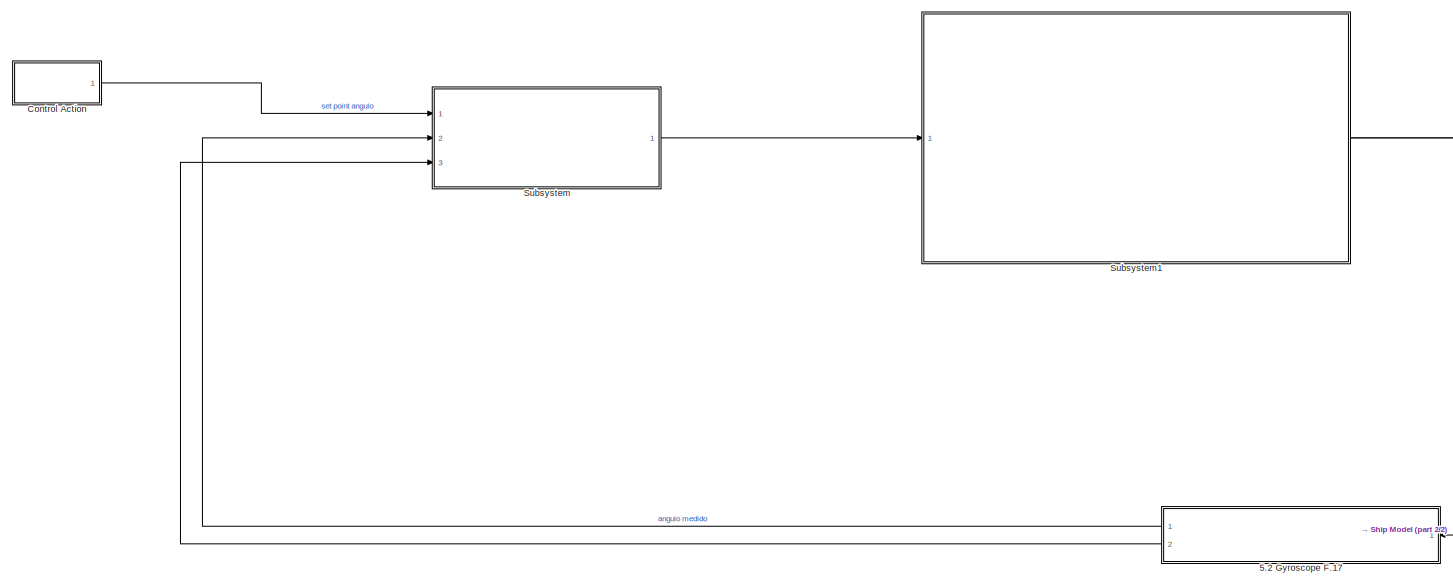
[diagram: root canvas - part 1/2, center side, full height]
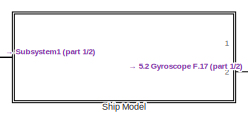
[diagram: root canvas - part 2/2, top right region]
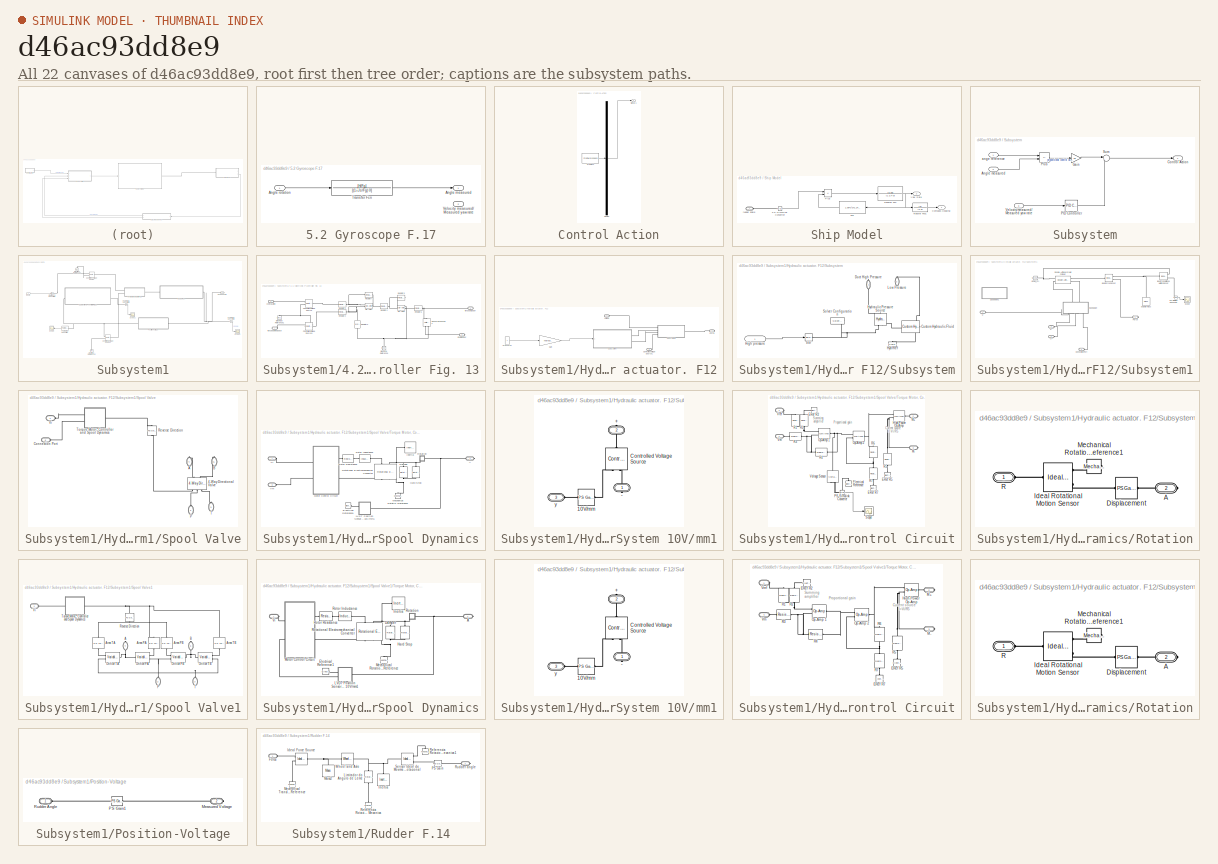
[diagram: thumbnail index - all 22 canvases of the model, root first then tree order]
MODEL slx_d46ac93dd8e9
KIND model
CONFIG AbsTol = 1e-3
CONFIG EnableMultiTasking = on
CONFIG FixedStep = auto
CONFIG MaxStep = 0.02
CONFIG MinStep = auto
CONFIG RelTol = 1e-3
CONFIG SampleTimeConstraint = Unconstrained
CONFIG Solver = VariableStepAuto
CONFIG SolverName = VariableStepAuto
CONFIG StartTime = 0.0
CONFIG StopTime = 30
BLOCK [SubSystem] 5.2 Gyroscope F.17
  NameLocation = top
  Ports = [1, 2]
  RequestExecContextInheritance = off
BLOCK [Outport] 5.2 Gyroscope F.17/Angle measured
BLOCK [Inport] 5.2 Gyroscope F.17/Angle rotation
BLOCK [TransferFcn] 5.2 Gyroscope F.17/Transfer Fcn
  Denominator = [(1+Js/Fg) 0]
  Numerator = [H/Fg]
BLOCK [Outport] 5.2 Gyroscope F.17/Velocity measured//Measured yaw rate
  Port = 2
BLOCK [SubSystem] Control Action
  ClipboardFcn = sigbuilder_block('clipboard');
  CloseFcn = sigbuilder_block('close');
  ContinueFcn = sigbuilder_block('continue');
  CopyFcn = sigbuilder_block('copy');
  DeleteFcn = sigbuilder_block('delete');
  LoadFcn = sigbuilder_block('load');
  MaskHideContents = on
  ModelCloseFcn = sigbuilder_block('modelClose');
  NameChangeFcn = sigbuilder_block('namechange');
  OpenFcn = sigbuilder_block('open',[437.6 153 550.4 359.25 ]);
  PauseFcn = sigbuilder_block('pause');
  Ports = [0, 1]
  PreSaveFcn = sigbuilder_block('preSave');
  RequestExecContextInheritance = off
  StartFcn = sigbuilder_block('start');
  StopFcn = sigbuilder_block('stop');
  Tag = STV Subsys
BLOCK [Demux] Control Action/Demux
  DisplayOption = none
  Outputs = 1
  Ports = [1, 1]
  Tag = STV Demux
BLOCK [FromWorkspace] Control Action/FromWs
  Tag = STV FromWs
  VariableName = tuvar
BLOCK [Outport] Control Action/Signal 1
  Tag = STV Outport
BLOCK [SubSystem] Ship Model
  Ports = [0, 2, 0, 0, 0, 1]
  RequestExecContextInheritance = off
BLOCK [Outport] Ship Model/Compass Heading
BLOCK [Fcn] Ship Model/Fcn
  Expr = 1.06*u^3+1.24*u
  NameLocation = top
BLOCK [Reference] Ship Model/PS-Simulink Converter  REF=nesl_utility/PS-Simulink
Converter
  Ports = [0, 1, 0, 0, 0, 1]
  SourceBlock = nesl_utility/PS-Simulink\nConverter
  SourceProductBaseCode = SS
  SourceType = PS-Simulink\nConverter
BLOCK [Sum] Ship Model/Plus
  IconShape = rectangular
  Inputs = +-
  Ports = [2, 1]
BLOCK [TransferFcn] Ship Model/Transfer Fcn
  Denominator = [1 3.4 0]
  Numerator = [0.05]
BLOCK [TransferFcn] Ship Model/Transfer Fcn1
  Denominator = [1 0]
BLOCK [Outport] Ship Model/Yaw Rate
  Port = 2
BLOCK [PMIOPort] Ship Model/rudder angle
  Side = Left
BLOCK [SubSystem] Subsystem
  Ports = [3, 1]
  RequestExecContextInheritance = off
BLOCK [Inport] Subsystem/Angle measured
  Port = 2
BLOCK [Outport] Subsystem/Control Action
BLOCK [Gain] Subsystem/Gain
  Gain = Kp
BLOCK [Reference] Subsystem/PID Controller  REF=simulink/Continuous/PID Controller
  Ports = [1, 1]
  SourceBlock = simulink/Continuous/PID Controller
  SourceProductBaseCode = SL
  SourceType = PID 1dof
BLOCK [Sum] Subsystem/Plus
  IconShape = rectangular
  Inputs = +-
  Ports = [2, 1]
BLOCK [Sum] Subsystem/Sum
  Inputs = |+-
  Ports = [2, 1]
BLOCK [Inport] Subsystem/Velocity measured//Measured yaw rate
  Port = 3
BLOCK [Inport] Subsystem/ange reference
BLOCK [SubSystem] Subsystem1
  Ports = [1, 0, 0, 0, 0, 0, 1]
  RequestExecContextInheritance = off
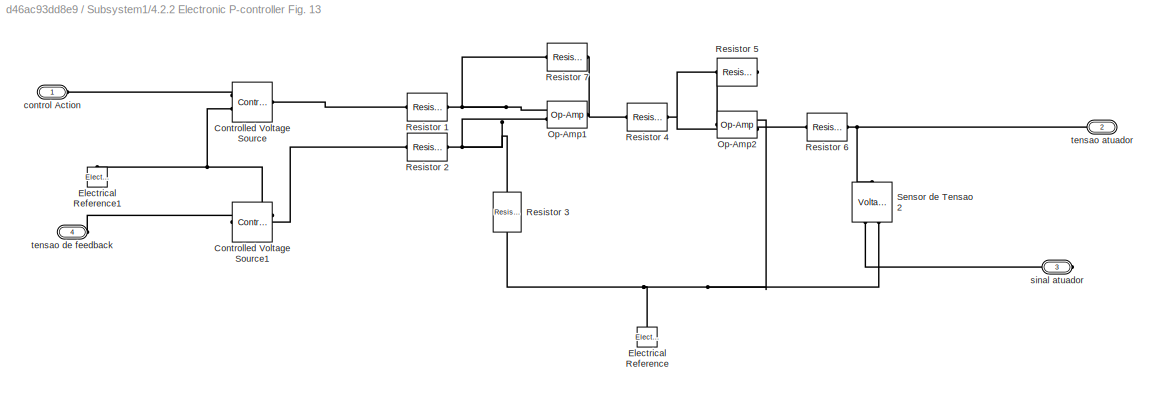
BLOCK [SubSystem] Subsystem1/4.2.2 Electronic P-controller Fig. 13
  Commented = on
  Ports = [0, 0, 0, 0, 0, 2, 2]
  RequestExecContextInheritance = off
BLOCK [Reference] Subsystem1/4.2.2 Electronic P-controller Fig. 13/Controlled Voltage Source  REF=fl_lib/Electrical/Electrical Sources/Controlled Voltage
Source
  Ports = [0, 0, 0, 0, 0, 1, 2]
  SourceBlock = fl_lib/Electrical/Electrical Sources/Controlled Voltage\nSource
  SourceProductName = Foundation Library
  SourceType = Controlled Voltage\nSource
BLOCK [Reference] Subsystem1/4.2.2 Electronic P-controller Fig. 13/Controlled Voltage Source1  REF=fl_lib/Electrical/Electrical Sources/Controlled Voltage
Source
  Ports = [0, 0, 0, 0, 0, 1, 2]
  SourceBlock = fl_lib/Electrical/Electrical Sources/Controlled Voltage\nSource
  SourceProductName = Foundation Library
  SourceType = Controlled Voltage\nSource
BLOCK [Reference] Subsystem1/4.2.2 Electronic P-controller Fig. 13/Electrical Reference  REF=fl_lib/Electrical/Electrical Elements/Electrical Reference
  NameLocation = right
  Ports = [0, 0, 0, 0, 0, 1]
  SourceBlock = fl_lib/Electrical/Electrical Elements/Electrical Reference
  SourceProductBaseCode = SS
  SourceType = Electrical Reference
BLOCK [Reference] Subsystem1/4.2.2 Electronic P-controller Fig. 13/Electrical Reference1  REF=fl_lib/Electrical/Electrical Elements/Electrical Reference
  NameLocation = right
  Ports = [0, 0, 0, 0, 0, 1]
  SourceBlock = fl_lib/Electrical/Electrical Elements/Electrical Reference
  SourceProductBaseCode = SS
  SourceType = Electrical Reference
BLOCK [Reference] Subsystem1/4.2.2 Electronic P-controller Fig. 13/Op-Amp1  REF=fl_lib/Electrical/Electrical Elements/Op-Amp
  Ports = [0, 0, 0, 0, 0, 2, 1]
  SourceBlock = fl_lib/Electrical/Electrical Elements/Op-Amp
  SourceProductBaseCode = SS
  SourceType = Op-Amp
BLOCK [Reference] Subsystem1/4.2.2 Electronic P-controller Fig. 13/Op-Amp2  REF=fl_lib/Electrical/Electrical Elements/Op-Amp
  Ports = [0, 0, 0, 0, 0, 2, 1]
  SourceBlock = fl_lib/Electrical/Electrical Elements/Op-Amp
  SourceProductBaseCode = SS
  SourceType = Op-Amp
BLOCK [Reference] Subsystem1/4.2.2 Electronic P-controller Fig. 13/Resistor 1  REF=fl_lib/Electrical/Electrical Elements/Resistor
  NameLocation = top
  Ports = [0, 0, 0, 0, 0, 1, 1]
  SourceBlock = fl_lib/Electrical/Electrical Elements/Resistor
  SourceProductBaseCode = SS
  SourceType = Resistor
BLOCK [Reference] Subsystem1/4.2.2 Electronic P-controller Fig. 13/Resistor 2  REF=fl_lib/Electrical/Electrical Elements/Resistor
  Ports = [0, 0, 0, 0, 0, 1, 1]
  SourceBlock = fl_lib/Electrical/Electrical Elements/Resistor
  SourceProductBaseCode = SS
  SourceType = Resistor
BLOCK [Reference] Subsystem1/4.2.2 Electronic P-controller Fig. 13/Resistor 3  REF=fl_lib/Electrical/Electrical Elements/Resistor
  NameLocation = right
  Ports = [0, 0, 0, 0, 0, 1, 1]
  SourceBlock = fl_lib/Electrical/Electrical Elements/Resistor
  SourceProductBaseCode = SS
  SourceType = Resistor
BLOCK [Reference] Subsystem1/4.2.2 Electronic P-controller Fig. 13/Resistor 4  REF=fl_lib/Electrical/Electrical Elements/Resistor
  Ports = [0, 0, 0, 0, 0, 1, 1]
  SourceBlock = fl_lib/Electrical/Electrical Elements/Resistor
  SourceProductBaseCode = SS
  SourceType = Resistor
BLOCK [Reference] Subsystem1/4.2.2 Electronic P-controller Fig. 13/Resistor 5  REF=fl_lib/Electrical/Electrical Elements/Resistor
  NameLocation = top
  Ports = [0, 0, 0, 0, 0, 1, 1]
  SourceBlock = fl_lib/Electrical/Electrical Elements/Resistor
  SourceProductBaseCode = SS
  SourceType = Resistor
BLOCK [Reference] Subsystem1/4.2.2 Electronic P-controller Fig. 13/Resistor 6  REF=fl_lib/Electrical/Electrical Elements/Resistor
  Ports = [0, 0, 0, 0, 0, 1, 1]
  SourceBlock = fl_lib/Electrical/Electrical Elements/Resistor
  SourceProductBaseCode = SS
  SourceType = Resistor
BLOCK [Reference] Subsystem1/4.2.2 Electronic P-controller Fig. 13/Resistor 7  REF=fl_lib/Electrical/Electrical Elements/Resistor
  NameLocation = top
  Ports = [0, 0, 0, 0, 0, 1, 1]
  SourceBlock = fl_lib/Electrical/Electrical Elements/Resistor
  SourceProductBaseCode = SS
  SourceType = Resistor
BLOCK [Reference] Subsystem1/4.2.2 Electronic P-controller Fig. 13/Sensor de Tensao 2  REF=fl_lib/Electrical/Electrical Sensors/Voltage Sensor
  NameLocation = right
  Ports = [0, 0, 0, 0, 0, 1, 2]
  SourceBlock = fl_lib/Electrical/Electrical Sensors/Voltage Sensor
  SourceProductBaseCode = SS
  SourceType = Voltage Sensor
BLOCK [PMIOPort] Subsystem1/4.2.2 Electronic P-controller Fig. 13/control Action
  Side = Left
BLOCK [PMIOPort] Subsystem1/4.2.2 Electronic P-controller Fig. 13/sinal atuador
  NameLocation = top
  Port = 3
  Side = Right
BLOCK [PMIOPort] Subsystem1/4.2.2 Electronic P-controller Fig. 13/tensao atuador
  Port = 2
  Side = Right
BLOCK [PMIOPort] Subsystem1/4.2.2 Electronic P-controller Fig. 13/tensao de feedback
  Port = 4
  Side = Left
BLOCK [Reference] Subsystem1/Controlled Voltage Source  REF=fl_lib/Electrical/Electrical Sources/Controlled Voltage
Source
  Ports = [0, 0, 0, 0, 0, 1, 2]
  SourceBlock = fl_lib/Electrical/Electrical Sources/Controlled Voltage\nSource
  SourceProductName = Foundation Library
  SourceType = Controlled Voltage\nSource
BLOCK [Reference] Subsystem1/Controlled Voltage Source1  REF=fl_lib/Electrical/Electrical Sources/Controlled Voltage
Source
  Ports = [0, 0, 0, 0, 0, 1, 2]
  SourceBlock = fl_lib/Electrical/Electrical Sources/Controlled Voltage\nSource
  SourceProductName = Foundation Library
  SourceType = Controlled Voltage\nSource
BLOCK [Reference] Subsystem1/Electrical Reference1  REF=fl_lib/Electrical/Electrical Elements/Electrical Reference
  NameLocation = right
  Ports = [0, 0, 0, 0, 0, 1]
  SourceBlock = fl_lib/Electrical/Electrical Elements/Electrical Reference
  SourceProductBaseCode = SS
  SourceType = Electrical Reference
BLOCK [Reference] Subsystem1/Electrical Reference2  REF=fl_lib/Electrical/Electrical Elements/Electrical Reference
  NameLocation = right
  Ports = [0, 0, 0, 0, 0, 1]
  SourceBlock = fl_lib/Electrical/Electrical Elements/Electrical Reference
  SourceProductBaseCode = SS
  SourceType = Electrical Reference
BLOCK [SubSystem] Subsystem1/Hydraulic actuator. F12
  Ports = [0, 0, 0, 0, 0, 2, 1]
  RequestExecContextInheritance = off
BLOCK [Constant] Subsystem1/Hydraulic actuator. F12/ Pressure1
BLOCK [PMIOPort] Subsystem1/Hydraulic actuator. F12/Controlled Voltage Source1
  Port = 3
  Side = Left
BLOCK [PMIOPort] Subsystem1/Hydraulic actuator. F12/Force
  Side = Right
BLOCK [Gain] Subsystem1/Hydraulic actuator. F12/Gain
  Gain = HydraulicPressure
BLOCK [SubSystem] Subsystem1/Hydraulic actuator. F12/Subsystem
  Ports = [1, 0, 0, 0, 0, 0, 2]
  RequestExecContextInheritance = off
BLOCK [Reference] Subsystem1/Hydraulic actuator. F12/Subsystem/Custom Hydraulic Fluid  REF=fl_lib/Hydraulic/Hydraulic Utilities/Custom Hydraulic
Fluid
  NameLocation = top
  Ports = [0, 0, 0, 0, 0, 0, 1]
  SourceBlock = fl_lib/Hydraulic/Hydraulic Utilities/Custom Hydraulic\nFluid
  SourceProductName = Foundation Library
  SourceType = Custom Hydraulic\nFluid
BLOCK [PMIOPort] Subsystem1/Hydraulic actuator. F12/Subsystem/Duct High Pressure
  NameLocation = left
  Side = Right
BLOCK [Inport] Subsystem1/Hydraulic actuator. F12/Subsystem/High pressure
BLOCK [Reference] Subsystem1/Hydraulic actuator. F12/Subsystem/HydrRef  REF=fl_lib/Hydraulic/Hydraulic Elements/Hydraulic Reference
  NameLocation = right
  Ports = [0, 0, 0, 0, 0, 1]
  SourceBlock = fl_lib/Hydraulic/Hydraulic Elements/Hydraulic Reference
  SourceProductName = Foundation Library
  SourceType = Hydraulic Reference
BLOCK [Reference] Subsystem1/Hydraulic actuator. F12/Subsystem/Hydraulic Pressure Source  REF=fl_lib/Hydraulic/Hydraulic Sources/Hydraulic Pressure
Source
  NameLocation = left
  Ports = [0, 0, 0, 0, 0, 1, 2]
  SourceBlock = fl_lib/Hydraulic/Hydraulic Sources/Hydraulic Pressure\nSource
  SourceProductName = Foundation Library
  SourceType = Hydraulic Pressure\nSource
BLOCK [PMIOPort] Subsystem1/Hydraulic actuator. F12/Subsystem/Low Pressure
  NameLocation = left
  Port = 2
  Side = Right
BLOCK [Reference] Subsystem1/Hydraulic actuator. F12/Subsystem/Solver Configuration  REF=nesl_utility/Solver
Configuration
  Ports = [0, 0, 0, 0, 0, 0, 1]
  SourceBlock = nesl_utility/Solver\nConfiguration
  SourceProductName = Utilities
  SourceType = Solver\nConfiguration
BLOCK [Reference] Subsystem1/Hydraulic actuator. F12/Subsystem/bar  REF=nesl_utility/Simulink-PS
Converter
  Ports = [1, 0, 0, 0, 0, 0, 1]
  SourceBlock = nesl_utility/Simulink-PS\nConverter
  SourceProductName = Utilities
  SourceType = Simulink-PS\nConverter
BLOCK [SubSystem] Subsystem1/Hydraulic actuator. F12/Subsystem1
  Ports = [0, 0, 0, 0, 0, 4, 1]
  RequestExecContextInheritance = off
BLOCK [PMIOPort] Subsystem1/Hydraulic actuator. F12/Subsystem1/Connection Port
  Port = 5
  Side = Left
BLOCK [Reference] Subsystem1/Hydraulic actuator. F12/Subsystem1/Double-Acting Hydraulic Cylinder  REF=sh_lib/Hydraulic Cylinders/Double-Acting
Hydraulic Cylinder
  Ports = [0, 0, 0, 0, 0, 2, 2]
  SourceBlock = sh_lib/Hydraulic Cylinders/Double-Acting\nHydraulic Cylinder
  SourceProductBaseCode = SH
  SourceType = Double-Acting\nHydraulic Cylinder
BLOCK [PMIOPort] Subsystem1/Hydraulic actuator. F12/Subsystem1/Force
  Port = 2
  Side = Right
BLOCK [Reference] Subsystem1/Hydraulic actuator. F12/Subsystem1/Ideal Force Sensor  REF=fl_lib/Mechanical/Mechanical Sensors/Ideal Force Sensor
  Ports = [0, 0, 0, 0, 0, 1, 2]
  SourceBlock = fl_lib/Mechanical/Mechanical Sensors/Ideal Force Sensor
  SourceProductBaseCode = SS
  SourceType = Ideal Force Sensor
BLOCK [Reference] Subsystem1/Hydraulic actuator. F12/Subsystem1/Ideal Translational Motion Sensor  REF=fl_lib/Mechanical/Mechanical Sensors/Ideal Translational
Motion Sensor
  Ports = [0, 0, 0, 0, 0, 1, 3]
  SourceBlock = fl_lib/Mechanical/Mechanical Sensors/Ideal Translational\nMotion Sensor
  SourceProductBaseCode = SS
  SourceType = Ideal Translational\nMotion Sensor
BLOCK [Reference] Subsystem1/Hydraulic actuator. F12/Subsystem1/MTRef_Cyl  REF=fl_lib/Mechanical/Translational
Elements/Mechanical
Translational
Reference
  Ports = [0, 0, 0, 0, 0, 1]
  SourceBlock = fl_lib/Mechanical/Translational\nElements/Mechanical\nTranslational\nReference
  SourceProductName = Foundation Library
  SourceType = Mechanical\nTranslational\nReference
BLOCK [PMIOPort] Subsystem1/Hydraulic actuator. F12/Subsystem1/P
  Port = 3
  Side = Left
BLOCK [Reference] Subsystem1/Hydraulic actuator. F12/Subsystem1/PS-Simulink Converter  REF=nesl_utility/PS-Simulink
Converter
  Ports = [0, 1, 0, 0, 0, 1]
  SourceBlock = nesl_utility/PS-Simulink\nConverter
  SourceProductBaseCode = SS
  SourceType = PS-Simulink\nConverter
BLOCK [Scope] Subsystem1/Hydraulic actuator. F12/Subsystem1/Scope
  Floating = off
  NumInputPorts = 1
  Ports = [1]
  ScopeSpecificationString = Simulink.scopes.TimeScopeBlockCfg('CurrentConfiguration', extmgr.ConfigurationSet(extmgr.Configuration('Core','General UI',true),extmgr.Configuration('Core','Source UI',true),extmgr.Configuration('Sources','WiredSimulink',true,'DataLoggingVariableName','ScopeData2'),extmgr.Configuration('Visuals','Time Domain',true,'SerializedDisplays',{struct('MinYLimReal','-2.79991','MaxYLimReal','25.19922','YLa...<+1415ch>
BLOCK [SubSystem] Subsystem1/Hydraulic actuator. F12/Subsystem1/Spool Valve
  NameLocation = right
  Ports = [0, 0, 0, 0, 0, 4, 2]
  RequestExecContextInheritance = off
  Tag = PublishSubsystem
BLOCK [Reference] Subsystem1/Hydraulic actuator. F12/Subsystem1/Spool Valve/4-Way Directional Valve  REF=sh_lib/Valves/Directional Valves/4-Way Directional
Valve
  NameLocation = right
  Ports = [0, 0, 0, 0, 0, 2, 3]
  SourceBlock = sh_lib/Valves/Directional Valves/4-Way Directional\nValve
  SourceProductBaseCode = SH
  SourceType = 4-Way Directional\nValve
BLOCK [PMIOPort] Subsystem1/Hydraulic actuator. F12/Subsystem1/Spool Valve/A
  NameLocation = right
  Port = 4
  Side = Right
  Tag = PMCPort
BLOCK [PMIOPort] Subsystem1/Hydraulic actuator. F12/Subsystem1/Spool Valve/B
  NameLocation = right
  Port = 5
  Side = Right
  Tag = PMCPort
BLOCK [PMIOPort] Subsystem1/Hydraulic actuator. F12/Subsystem1/Spool Valve/Connection Port
  Port = 6
  Side = Left
BLOCK [PMIOPort] Subsystem1/Hydraulic actuator. F12/Subsystem1/Spool Valve/P
  NameLocation = right
  Port = 2
  Side = Left
  Tag = PMCPort
BLOCK [Reference] Subsystem1/Hydraulic actuator. F12/Subsystem1/Spool Valve/Reverse Direction  REF=fl_lib/Physical Signals/Functions/PS Gain
  NameLocation = right
  Ports = [0, 0, 0, 0, 0, 1, 1]
  SourceBlock = fl_lib/Physical Signals/Functions/PS Gain
  SourceProductName = Foundation Library
  SourceType = PS Gain
BLOCK [PMIOPort] Subsystem1/Hydraulic actuator. F12/Subsystem1/Spool Valve/T
  NameLocation = right
  Port = 3
  Side = Left
  Tag = PMCPort
BLOCK [SubSystem] Subsystem1/Hydraulic actuator. F12/Subsystem1/Spool Valve/Torque Motor, Controller and Spool Dynamics
  Ports = [0, 0, 0, 0, 0, 2, 1]
  RequestExecContextInheritance = off
BLOCK [PMIOPort] Subsystem1/Hydraulic actuator. F12/Subsystem1/Spool Valve/Torque Motor, Controller and Spool Dynamics/A
  Port = 2
  Side = Right
BLOCK [Reference] Subsystem1/Hydraulic actuator. F12/Subsystem1/Spool Valve/Torque Motor, Controller and Spool Dynamics/Damper  REF=fl_lib/Mechanical/Rotational Elements/Rotational Damper
  NameLocation = right
  Ports = [0, 0, 0, 0, 0, 1, 1]
  SourceBlock = fl_lib/Mechanical/Rotational Elements/Rotational Damper
  SourceProductName = Foundation Library
  SourceType = Rotational Damper
BLOCK [Reference] Subsystem1/Hydraulic actuator. F12/Subsystem1/Spool Valve/Torque Motor, Controller and Spool Dynamics/Electrical Reference1  REF=fl_lib/Electrical/Electrical Elements/Electrical Reference
  Commented = on
  NameLocation = top
  Ports = [0, 0, 0, 0, 0, 1]
  SourceBlock = fl_lib/Electrical/Electrical Elements/Electrical Reference
  SourceProductName = Foundation Library
  SourceType = Electrical Reference
BLOCK [Reference] Subsystem1/Hydraulic actuator. F12/Subsystem1/Spool Valve/Torque Motor, Controller and Spool Dynamics/Hard Stop  REF=fl_lib/Mechanical/Rotational Elements/Rotational Hard Stop
  NameLocation = right
  Ports = [0, 0, 0, 0, 0, 1, 1]
  SourceBlock = fl_lib/Mechanical/Rotational Elements/Rotational Hard Stop
  SourceProductName = Foundation Library
  SourceType = Rotational Hard Stop
BLOCK [Reference] Subsystem1/Hydraulic actuator. F12/Subsystem1/Spool Valve/Torque Motor, Controller and Spool Dynamics/Inertia  REF=fl_lib/Mechanical/Rotational Elements/Inertia
  Ports = [0, 0, 0, 0, 0, 1]
  SourceBlock = fl_lib/Mechanical/Rotational Elements/Inertia
  SourceProductName = Foundation Library
  SourceType = Inertia
BLOCK [SubSystem] Subsystem1/Hydraulic actuator. F12/Subsystem1/Spool Valve/Torque Motor, Controller and Spool Dynamics/LVDT Position Sensor System 10V//mm1
  Commented = on
  Ports = [0, 0, 0, 0, 0, 1, 2]
  RequestExecContextInheritance = off
BLOCK [PMIOPort] Subsystem1/Hydraulic actuator. F12/Subsystem1/Spool Valve/Torque Motor, Controller and Spool Dynamics/LVDT Position Sensor System 10V//mm1/+
  NameLocation = right
  Port = 2
  Side = Right
BLOCK [PMIOPort] Subsystem1/Hydraulic actuator. F12/Subsystem1/Spool Valve/Torque Motor, Controller and Spool Dynamics/LVDT Position Sensor System 10V//mm1/-
  NameLocation = right
  Side = Right
BLOCK [Reference] Subsystem1/Hydraulic actuator. F12/Subsystem1/Spool Valve/Torque Motor, Controller and Spool Dynamics/LVDT Position Sensor System 10V//mm1/10V//mm  REF=fl_lib/Physical Signals/Functions/PS Gain
  Ports = [0, 0, 0, 0, 0, 1, 1]
  SourceBlock = fl_lib/Physical Signals/Functions/PS Gain
  SourceProductName = Foundation Library
  SourceType = PS Gain
BLOCK [Reference] Subsystem1/Hydraulic actuator. F12/Subsystem1/Spool Valve/Torque Motor, Controller and Spool Dynamics/LVDT Position Sensor System 10V//mm1/Controlled Voltage Source  REF=fl_lib/Electrical/Electrical Sources/Controlled Voltage
Source
  NameLocation = right
  Ports = [0, 0, 0, 0, 0, 1, 2]
  SourceBlock = fl_lib/Electrical/Electrical Sources/Controlled Voltage\nSource
  SourceProductName = Foundation Library
  SourceType = Controlled Voltage\nSource
BLOCK [PMIOPort] Subsystem1/Hydraulic actuator. F12/Subsystem1/Spool Valve/Torque Motor, Controller and Spool Dynamics/LVDT Position Sensor System 10V//mm1/y
  Port = 3
  Side = Left
BLOCK [Reference] Subsystem1/Hydraulic actuator. F12/Subsystem1/Spool Valve/Torque Motor, Controller and Spool Dynamics/Mechanical Rotational Reference  REF=fl_lib/Mechanical/Rotational Elements/Mechanical
Rotational Reference
  NameLocation = right
  Ports = [0, 0, 0, 0, 0, 1]
  SourceBlock = fl_lib/Mechanical/Rotational Elements/Mechanical\nRotational Reference
  SourceProductName = Foundation Library
  SourceType = Mechanical\nRotational Reference
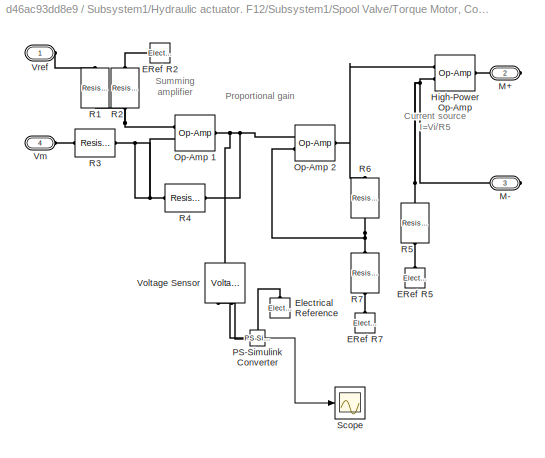
BLOCK [SubSystem] Subsystem1/Hydraulic actuator. F12/Subsystem1/Spool Valve/Torque Motor, Controller and Spool Dynamics/Motor Control Circuit
  Ports = [0, 0, 0, 0, 0, 2, 2]
  RequestExecContextInheritance = off
  Tag = PublishSubsystem
BLOCK [Reference] Subsystem1/Hydraulic actuator. F12/Subsystem1/Spool Valve/Torque Motor, Controller and Spool Dynamics/Motor Control Circuit/ERef R2  REF=fl_lib/Electrical/Electrical Elements/Electrical Reference
  NameLocation = top
  Ports = [0, 0, 0, 0, 0, 1]
  SourceBlock = fl_lib/Electrical/Electrical Elements/Electrical Reference
  SourceProductName = Foundation Library
  SourceType = Electrical Reference
BLOCK [Reference] Subsystem1/Hydraulic actuator. F12/Subsystem1/Spool Valve/Torque Motor, Controller and Spool Dynamics/Motor Control Circuit/ERef R5  REF=fl_lib/Electrical/Electrical Elements/Electrical Reference
  NameLocation = right
  Ports = [0, 0, 0, 0, 0, 1]
  SourceBlock = fl_lib/Electrical/Electrical Elements/Electrical Reference
  SourceProductName = Foundation Library
  SourceType = Electrical Reference
BLOCK [Reference] Subsystem1/Hydraulic actuator. F12/Subsystem1/Spool Valve/Torque Motor, Controller and Spool Dynamics/Motor Control Circuit/ERef R7  REF=fl_lib/Electrical/Electrical Elements/Electrical Reference
  NameLocation = left
  Ports = [0, 0, 0, 0, 0, 1]
  SourceBlock = fl_lib/Electrical/Electrical Elements/Electrical Reference
  SourceProductName = Foundation Library
  SourceType = Electrical Reference
BLOCK [Reference] Subsystem1/Hydraulic actuator. F12/Subsystem1/Spool Valve/Torque Motor, Controller and Spool Dynamics/Motor Control Circuit/Electrical Reference  REF=fl_lib/Electrical/Electrical Elements/Electrical Reference
  NameLocation = right
  Ports = [0, 0, 0, 0, 0, 1]
  SourceBlock = fl_lib/Electrical/Electrical Elements/Electrical Reference
  SourceProductBaseCode = SS
  SourceType = Electrical Reference
BLOCK [Reference] Subsystem1/Hydraulic actuator. F12/Subsystem1/Spool Valve/Torque Motor, Controller and Spool Dynamics/Motor Control Circuit/High-Power Op-Amp  REF=fl_lib/Electrical/Electrical Elements/Op-Amp
  NameLocation = top
  Ports = [0, 0, 0, 0, 0, 2, 1]
  SourceBlock = fl_lib/Electrical/Electrical Elements/Op-Amp
  SourceProductName = Foundation Library
  SourceType = Op-Amp
BLOCK [PMIOPort] Subsystem1/Hydraulic actuator. F12/Subsystem1/Spool Valve/Torque Motor, Controller and Spool Dynamics/Motor Control Circuit/M+
  Port = 2
  Side = Right
BLOCK [PMIOPort] Subsystem1/Hydraulic actuator. F12/Subsystem1/Spool Valve/Torque Motor, Controller and Spool Dynamics/Motor Control Circuit/M-
  Port = 3
  Side = Right
BLOCK [Reference] Subsystem1/Hydraulic actuator. F12/Subsystem1/Spool Valve/Torque Motor, Controller and Spool Dynamics/Motor Control Circuit/Op-Amp 1  REF=fl_lib/Electrical/Electrical Elements/Op-Amp
  Ports = [0, 0, 0, 0, 0, 2, 1]
  SourceBlock = fl_lib/Electrical/Electrical Elements/Op-Amp
  SourceProductName = Foundation Library
  SourceType = Op-Amp
BLOCK [Reference] Subsystem1/Hydraulic actuator. F12/Subsystem1/Spool Valve/Torque Motor, Controller and Spool Dynamics/Motor Control Circuit/Op-Amp 2  REF=fl_lib/Electrical/Electrical Elements/Op-Amp
  Ports = [0, 0, 0, 0, 0, 2, 1]
  SourceBlock = fl_lib/Electrical/Electrical Elements/Op-Amp
  SourceProductName = Foundation Library
  SourceType = Op-Amp
BLOCK [Reference] Subsystem1/Hydraulic actuator. F12/Subsystem1/Spool Valve/Torque Motor, Controller and Spool Dynamics/Motor Control Circuit/PS-Simulink Converter  REF=nesl_utility/PS-Simulink
Converter
  Ports = [0, 1, 0, 0, 0, 1]
  SourceBlock = nesl_utility/PS-Simulink\nConverter
  SourceProductBaseCode = SS
  SourceType = PS-Simulink\nConverter
BLOCK [Reference] Subsystem1/Hydraulic actuator. F12/Subsystem1/Spool Valve/Torque Motor, Controller and Spool Dynamics/Motor Control Circuit/R1  REF=fl_lib/Electrical/Electrical Elements/Resistor
  NameLocation = left
  Ports = [0, 0, 0, 0, 0, 1, 1]
  SourceBlock = fl_lib/Electrical/Electrical Elements/Resistor
  SourceProductName = Foundation Library
  SourceType = Resistor
BLOCK [Reference] Subsystem1/Hydraulic actuator. F12/Subsystem1/Spool Valve/Torque Motor, Controller and Spool Dynamics/Motor Control Circuit/R2  REF=fl_lib/Electrical/Electrical Elements/Resistor
  NameLocation = right
  Ports = [0, 0, 0, 0, 0, 1, 1]
  SourceBlock = fl_lib/Electrical/Electrical Elements/Resistor
  SourceProductName = Foundation Library
  SourceType = Resistor
BLOCK [Reference] Subsystem1/Hydraulic actuator. F12/Subsystem1/Spool Valve/Torque Motor, Controller and Spool Dynamics/Motor Control Circuit/R3  REF=fl_lib/Electrical/Electrical Elements/Resistor
  Ports = [0, 0, 0, 0, 0, 1, 1]
  SourceBlock = fl_lib/Electrical/Electrical Elements/Resistor
  SourceProductName = Foundation Library
  SourceType = Resistor
BLOCK [Reference] Subsystem1/Hydraulic actuator. F12/Subsystem1/Spool Valve/Torque Motor, Controller and Spool Dynamics/Motor Control Circuit/R4  REF=fl_lib/Electrical/Electrical Elements/Resistor
  Ports = [0, 0, 0, 0, 0, 1, 1]
  SourceBlock = fl_lib/Electrical/Electrical Elements/Resistor
  SourceProductName = Foundation Library
  SourceType = Resistor
BLOCK [Reference] Subsystem1/Hydraulic actuator. F12/Subsystem1/Spool Valve/Torque Motor, Controller and Spool Dynamics/Motor Control Circuit/R5  REF=fl_lib/Electrical/Electrical Elements/Resistor
  NameLocation = right
  Ports = [0, 0, 0, 0, 0, 1, 1]
  SourceBlock = fl_lib/Electrical/Electrical Elements/Resistor
  SourceProductName = Foundation Library
  SourceType = Resistor
BLOCK [Reference] Subsystem1/Hydraulic actuator. F12/Subsystem1/Spool Valve/Torque Motor, Controller and Spool Dynamics/Motor Control Circuit/R6  REF=fl_lib/Electrical/Electrical Elements/Resistor
  NameLocation = left
  Ports = [0, 0, 0, 0, 0, 1, 1]
  SourceBlock = fl_lib/Electrical/Electrical Elements/Resistor
  SourceProductName = Foundation Library
  SourceType = Resistor
BLOCK [Reference] Subsystem1/Hydraulic actuator. F12/Subsystem1/Spool Valve/Torque Motor, Controller and Spool Dynamics/Motor Control Circuit/R7  REF=fl_lib/Electrical/Electrical Elements/Resistor
  NameLocation = left
  Ports = [0, 0, 0, 0, 0, 1, 1]
  SourceBlock = fl_lib/Electrical/Electrical Elements/Resistor
  SourceProductName = Foundation Library
  SourceType = Resistor
BLOCK [Scope] Subsystem1/Hydraulic actuator. F12/Subsystem1/Spool Valve/Torque Motor, Controller and Spool Dynamics/Motor Control Circuit/Scope
  Floating = off
  NumInputPorts = 1
  Ports = [1]
  ScopeSpecificationString = Simulink.scopes.TimeScopeBlockCfg('CurrentConfiguration', extmgr.ConfigurationSet(extmgr.Configuration('Core','General UI',true),extmgr.Configuration('Core','Source UI',true),extmgr.Configuration('Sources','WiredSimulink',true,'DataLoggingVariableName','ScopeData1'),extmgr.Configuration('Visuals','Time Domain',true,'SerializedDisplays',{struct('MinYLimReal','-0.6875','MaxYLimReal','6.1875','YLabel...<+1374ch>
BLOCK [PMIOPort] Subsystem1/Hydraulic actuator. F12/Subsystem1/Spool Valve/Torque Motor, Controller and Spool Dynamics/Motor Control Circuit/Vm
  Port = 4
  Side = Left
BLOCK [Reference] Subsystem1/Hydraulic actuator. F12/Subsystem1/Spool Valve/Torque Motor, Controller and Spool Dynamics/Motor Control Circuit/Voltage Sensor  REF=fl_lib/Electrical/Electrical Sensors/Voltage Sensor
  NameLocation = right
  Ports = [0, 0, 0, 0, 0, 1, 2]
  SourceBlock = fl_lib/Electrical/Electrical Sensors/Voltage Sensor
  SourceProductBaseCode = SS
  SourceType = Voltage Sensor
BLOCK [PMIOPort] Subsystem1/Hydraulic actuator. F12/Subsystem1/Spool Valve/Torque Motor, Controller and Spool Dynamics/Motor Control Circuit/Vref
  Side = Left
BLOCK [SubSystem] Subsystem1/Hydraulic actuator. F12/Subsystem1/Spool Valve/Torque Motor, Controller and Spool Dynamics/Rotation
  Ports = [0, 0, 0, 0, 0, 1, 1]
  RequestExecContextInheritance = off
BLOCK [PMIOPort] Subsystem1/Hydraulic actuator. F12/Subsystem1/Spool Valve/Torque Motor, Controller and Spool Dynamics/Rotation/A
  Port = 2
  Side = Right
BLOCK [Reference] Subsystem1/Hydraulic actuator. F12/Subsystem1/Spool Valve/Torque Motor, Controller and Spool Dynamics/Rotation/Displacement  REF=fl_lib/Physical Signals/Functions/PS Gain
  Ports = [0, 0, 0, 0, 0, 1, 1]
  SourceBlock = fl_lib/Physical Signals/Functions/PS Gain
  SourceProductName = Foundation Library
  SourceType = PS Gain
BLOCK [Reference] Subsystem1/Hydraulic actuator. F12/Subsystem1/Spool Valve/Torque Motor, Controller and Spool Dynamics/Rotation/Ideal Rotational Motion Sensor  REF=fl_lib/Mechanical/Mechanical Sensors/Ideal Rotational
Motion Sensor
  Ports = [0, 0, 0, 0, 0, 1, 3]
  SourceBlock = fl_lib/Mechanical/Mechanical Sensors/Ideal Rotational\nMotion Sensor
  SourceProductName = Foundation Library
  SourceType = Ideal Rotational\nMotion Sensor
BLOCK [Reference] Subsystem1/Hydraulic actuator. F12/Subsystem1/Spool Valve/Torque Motor, Controller and Spool Dynamics/Rotation/Mechanical Rotational Reference1  REF=fl_lib/Mechanical/Rotational Elements/Mechanical
Rotational Reference
  NameLocation = top
  Ports = [0, 0, 0, 0, 0, 1]
  SourceBlock = fl_lib/Mechanical/Rotational Elements/Mechanical\nRotational Reference
  SourceProductName = Foundation Library
  SourceType = Mechanical\nRotational Reference
BLOCK [PMIOPort] Subsystem1/Hydraulic actuator. F12/Subsystem1/Spool Valve/Torque Motor, Controller and Spool Dynamics/Rotation/R
  Side = Left
BLOCK [Reference] Subsystem1/Hydraulic actuator. F12/Subsystem1/Spool Valve/Torque Motor, Controller and Spool Dynamics/Rotational Electromechanical Converter  REF=fl_lib/Electrical/Electrical Elements/Rotational
Electromechanical
Converter
  NameLocation = left
  Ports = [0, 0, 0, 0, 0, 2, 2]
  SourceBlock = fl_lib/Electrical/Electrical Elements/Rotational\nElectromechanical\nConverter
  SourceProductName = Foundation Library
  SourceType = Rotational\nElectromechanical\nConverter
BLOCK [Reference] Subsystem1/Hydraulic actuator. F12/Subsystem1/Spool Valve/Torque Motor, Controller and Spool Dynamics/Rotor Inductance  REF=fl_lib/Electrical/Electrical Elements/Inductor
  Ports = [0, 0, 0, 0, 0, 1, 1]
  SourceBlock = fl_lib/Electrical/Electrical Elements/Inductor
  SourceProductName = Foundation Library
  SourceType = Inductor
BLOCK [Reference] Subsystem1/Hydraulic actuator. F12/Subsystem1/Spool Valve/Torque Motor, Controller and Spool Dynamics/Rotor Resistance  REF=fl_lib/Electrical/Electrical Elements/Resistor
  Ports = [0, 0, 0, 0, 0, 1, 1]
  SourceBlock = fl_lib/Electrical/Electrical Elements/Resistor
  SourceProductName = Foundation Library
  SourceType = Resistor
  Tag = Factory Generic
BLOCK [PMIOPort] Subsystem1/Hydraulic actuator. F12/Subsystem1/Spool Valve/Torque Motor, Controller and Spool Dynamics/Vi
  Side = Left
BLOCK [PMIOPort] Subsystem1/Hydraulic actuator. F12/Subsystem1/Spool Valve/Torque Motor, Controller and Spool Dynamics/Vm
  Port = 3
  Side = Left
BLOCK [PMIOPort] Subsystem1/Hydraulic actuator. F12/Subsystem1/Spool Valve/Vi
  Side = Left
  Tag = PMCPort
BLOCK [SubSystem] Subsystem1/Hydraulic actuator. F12/Subsystem1/Spool Valve1
  Commented = on
  NameLocation = right
  Ports = [0, 0, 0, 0, 0, 3, 2]
  RequestExecContextInheritance = off
  Tag = PublishSubsystem
BLOCK [PMIOPort] Subsystem1/Hydraulic actuator. F12/Subsystem1/Spool Valve1/A
  NameLocation = right
  Port = 4
  Side = Right
  Tag = PMCPort
BLOCK [Reference] Subsystem1/Hydraulic actuator. F12/Subsystem1/Spool Valve1/Area PA  REF=fl_lib/Physical Signals/Lookup Tables/PS Lookup Table (1D)
  NameLocation = left
  Ports = [0, 0, 0, 0, 0, 1, 1]
  SourceBlock = fl_lib/Physical Signals/Lookup Tables/PS Lookup Table (1D)
  SourceProductName = Foundation Library
  SourceType = PS Lookup Table (1D)
BLOCK [Reference] Subsystem1/Hydraulic actuator. F12/Subsystem1/Spool Valve1/Area PB  REF=fl_lib/Physical Signals/Lookup Tables/PS Lookup Table (1D)
  NameLocation = right
  Ports = [0, 0, 0, 0, 0, 1, 1]
  SourceBlock = fl_lib/Physical Signals/Lookup Tables/PS Lookup Table (1D)
  SourceProductName = Foundation Library
  SourceType = PS Lookup Table (1D)
BLOCK [Reference] Subsystem1/Hydraulic actuator. F12/Subsystem1/Spool Valve1/Area TA  REF=fl_lib/Physical Signals/Lookup Tables/PS Lookup Table (1D)
  NameLocation = right
  Ports = [0, 0, 0, 0, 0, 1, 1]
  SourceBlock = fl_lib/Physical Signals/Lookup Tables/PS Lookup Table (1D)
  SourceProductName = Foundation Library
  SourceType = PS Lookup Table (1D)
BLOCK [Reference] Subsystem1/Hydraulic actuator. F12/Subsystem1/Spool Valve1/Area TB  REF=fl_lib/Physical Signals/Lookup Tables/PS Lookup Table (1D)
  NameLocation = left
  Ports = [0, 0, 0, 0, 0, 1, 1]
  SourceBlock = fl_lib/Physical Signals/Lookup Tables/PS Lookup Table (1D)
  SourceProductName = Foundation Library
  SourceType = PS Lookup Table (1D)
BLOCK [PMIOPort] Subsystem1/Hydraulic actuator. F12/Subsystem1/Spool Valve1/B
  NameLocation = right
  Port = 5
  Side = Right
  Tag = PMCPort
BLOCK [Reference] Subsystem1/Hydraulic actuator. F12/Subsystem1/Spool Valve1/Orifice PA  REF=fl_lib/Hydraulic/Hydraulic Elements/Variable Area
Hydraulic Orifice
  Ports = [0, 0, 0, 0, 0, 2, 1]
  SourceBlock = fl_lib/Hydraulic/Hydraulic Elements/Variable Area\nHydraulic Orifice
  SourceProductName = Foundation Library
  SourceType = Variable Area\nHydraulic Orifice
BLOCK [Reference] Subsystem1/Hydraulic actuator. F12/Subsystem1/Spool Valve1/Orifice PB  REF=fl_lib/Hydraulic/Hydraulic Elements/Variable Area
Hydraulic Orifice
  Ports = [0, 0, 0, 0, 0, 2, 1]
  SourceBlock = fl_lib/Hydraulic/Hydraulic Elements/Variable Area\nHydraulic Orifice
  SourceProductName = Foundation Library
  SourceType = Variable Area\nHydraulic Orifice
BLOCK [Reference] Subsystem1/Hydraulic actuator. F12/Subsystem1/Spool Valve1/Orifice TA  REF=fl_lib/Hydraulic/Hydraulic Elements/Variable Area
Hydraulic Orifice
  Ports = [0, 0, 0, 0, 0, 2, 1]
  SourceBlock = fl_lib/Hydraulic/Hydraulic Elements/Variable Area\nHydraulic Orifice
  SourceProductName = Foundation Library
  SourceType = Variable Area\nHydraulic Orifice
BLOCK [Reference] Subsystem1/Hydraulic actuator. F12/Subsystem1/Spool Valve1/Orifice TB  REF=fl_lib/Hydraulic/Hydraulic Elements/Variable Area
Hydraulic Orifice
  Ports = [0, 0, 0, 0, 0, 2, 1]
  SourceBlock = fl_lib/Hydraulic/Hydraulic Elements/Variable Area\nHydraulic Orifice
  SourceProductName = Foundation Library
  SourceType = Variable Area\nHydraulic Orifice
BLOCK [PMIOPort] Subsystem1/Hydraulic actuator. F12/Subsystem1/Spool Valve1/P
  NameLocation = right
  Port = 2
  Side = Left
  Tag = PMCPort
BLOCK [Reference] Subsystem1/Hydraulic actuator. F12/Subsystem1/Spool Valve1/Reverse Direction  REF=fl_lib/Physical Signals/Functions/PS Gain
  NameLocation = right
  Ports = [0, 0, 0, 0, 0, 1, 1]
  SourceBlock = fl_lib/Physical Signals/Functions/PS Gain
  SourceProductName = Foundation Library
  SourceType = PS Gain
BLOCK [PMIOPort] Subsystem1/Hydraulic actuator. F12/Subsystem1/Spool Valve1/T
  NameLocation = right
  Port = 3
  Side = Left
  Tag = PMCPort
BLOCK [SubSystem] Subsystem1/Hydraulic actuator. F12/Subsystem1/Spool Valve1/Torque Motor, Controller and Spool Dynamics
  Ports = [0, 0, 0, 0, 0, 1, 1]
  RequestExecContextInheritance = off
BLOCK [PMIOPort] Subsystem1/Hydraulic actuator. F12/Subsystem1/Spool Valve1/Torque Motor, Controller and Spool Dynamics/A
  Port = 2
  Side = Right
BLOCK [Reference] Subsystem1/Hydraulic actuator. F12/Subsystem1/Spool Valve1/Torque Motor, Controller and Spool Dynamics/Damper  REF=fl_lib/Mechanical/Rotational Elements/Rotational Damper
  NameLocation = right
  Ports = [0, 0, 0, 0, 0, 1, 1]
  SourceBlock = fl_lib/Mechanical/Rotational Elements/Rotational Damper
  SourceProductName = Foundation Library
  SourceType = Rotational Damper
BLOCK [Reference] Subsystem1/Hydraulic actuator. F12/Subsystem1/Spool Valve1/Torque Motor, Controller and Spool Dynamics/Electrical Reference1  REF=fl_lib/Electrical/Electrical Elements/Electrical Reference
  NameLocation = top
  Ports = [0, 0, 0, 0, 0, 1]
  SourceBlock = fl_lib/Electrical/Electrical Elements/Electrical Reference
  SourceProductName = Foundation Library
  SourceType = Electrical Reference
BLOCK [Reference] Subsystem1/Hydraulic actuator. F12/Subsystem1/Spool Valve1/Torque Motor, Controller and Spool Dynamics/Hard Stop  REF=fl_lib/Mechanical/Rotational Elements/Rotational Hard Stop
  NameLocation = right
  Ports = [0, 0, 0, 0, 0, 1, 1]
  SourceBlock = fl_lib/Mechanical/Rotational Elements/Rotational Hard Stop
  SourceProductName = Foundation Library
  SourceType = Rotational Hard Stop
BLOCK [Reference] Subsystem1/Hydraulic actuator. F12/Subsystem1/Spool Valve1/Torque Motor, Controller and Spool Dynamics/Inertia  REF=fl_lib/Mechanical/Rotational Elements/Inertia
  Ports = [0, 0, 0, 0, 0, 1]
  SourceBlock = fl_lib/Mechanical/Rotational Elements/Inertia
  SourceProductName = Foundation Library
  SourceType = Inertia
BLOCK [SubSystem] Subsystem1/Hydraulic actuator. F12/Subsystem1/Spool Valve1/Torque Motor, Controller and Spool Dynamics/LVDT Position Sensor System 10V//mm1
  Ports = [0, 0, 0, 0, 0, 1, 2]
  RequestExecContextInheritance = off
BLOCK [PMIOPort] Subsystem1/Hydraulic actuator. F12/Subsystem1/Spool Valve1/Torque Motor, Controller and Spool Dynamics/LVDT Position Sensor System 10V//mm1/+
  NameLocation = right
  Port = 2
  Side = Right
BLOCK [PMIOPort] Subsystem1/Hydraulic actuator. F12/Subsystem1/Spool Valve1/Torque Motor, Controller and Spool Dynamics/LVDT Position Sensor System 10V//mm1/-
  NameLocation = right
  Side = Right
BLOCK [Reference] Subsystem1/Hydraulic actuator. F12/Subsystem1/Spool Valve1/Torque Motor, Controller and Spool Dynamics/LVDT Position Sensor System 10V//mm1/10V//mm  REF=fl_lib/Physical Signals/Functions/PS Gain
  Ports = [0, 0, 0, 0, 0, 1, 1]
  SourceBlock = fl_lib/Physical Signals/Functions/PS Gain
  SourceProductName = Foundation Library
  SourceType = PS Gain
BLOCK [Reference] Subsystem1/Hydraulic actuator. F12/Subsystem1/Spool Valve1/Torque Motor, Controller and Spool Dynamics/LVDT Position Sensor System 10V//mm1/Controlled Voltage Source  REF=fl_lib/Electrical/Electrical Sources/Controlled Voltage
Source
  NameLocation = right
  Ports = [0, 0, 0, 0, 0, 1, 2]
  SourceBlock = fl_lib/Electrical/Electrical Sources/Controlled Voltage\nSource
  SourceProductName = Foundation Library
  SourceType = Controlled Voltage\nSource
BLOCK [PMIOPort] Subsystem1/Hydraulic actuator. F12/Subsystem1/Spool Valve1/Torque Motor, Controller and Spool Dynamics/LVDT Position Sensor System 10V//mm1/y
  Port = 3
  Side = Left
BLOCK [Reference] Subsystem1/Hydraulic actuator. F12/Subsystem1/Spool Valve1/Torque Motor, Controller and Spool Dynamics/Mechanical Rotational Reference  REF=fl_lib/Mechanical/Rotational Elements/Mechanical
Rotational Reference
  NameLocation = right
  Ports = [0, 0, 0, 0, 0, 1]
  SourceBlock = fl_lib/Mechanical/Rotational Elements/Mechanical\nRotational Reference
  SourceProductName = Foundation Library
  SourceType = Mechanical\nRotational Reference
BLOCK [SubSystem] Subsystem1/Hydraulic actuator. F12/Subsystem1/Spool Valve1/Torque Motor, Controller and Spool Dynamics/Motor Control Circuit
  Ports = [0, 0, 0, 0, 0, 2, 2]
  RequestExecContextInheritance = off
  Tag = PublishSubsystem
BLOCK [Reference] Subsystem1/Hydraulic actuator. F12/Subsystem1/Spool Valve1/Torque Motor, Controller and Spool Dynamics/Motor Control Circuit/ERef R2  REF=fl_lib/Electrical/Electrical Elements/Electrical Reference
  NameLocation = top
  Ports = [0, 0, 0, 0, 0, 1]
  SourceBlock = fl_lib/Electrical/Electrical Elements/Electrical Reference
  SourceProductName = Foundation Library
  SourceType = Electrical Reference
BLOCK [Reference] Subsystem1/Hydraulic actuator. F12/Subsystem1/Spool Valve1/Torque Motor, Controller and Spool Dynamics/Motor Control Circuit/ERef R5  REF=fl_lib/Electrical/Electrical Elements/Electrical Reference
  NameLocation = right
  Ports = [0, 0, 0, 0, 0, 1]
  SourceBlock = fl_lib/Electrical/Electrical Elements/Electrical Reference
  SourceProductName = Foundation Library
  SourceType = Electrical Reference
BLOCK [Reference] Subsystem1/Hydraulic actuator. F12/Subsystem1/Spool Valve1/Torque Motor, Controller and Spool Dynamics/Motor Control Circuit/ERef R7  REF=fl_lib/Electrical/Electrical Elements/Electrical Reference
  NameLocation = left
  Ports = [0, 0, 0, 0, 0, 1]
  SourceBlock = fl_lib/Electrical/Electrical Elements/Electrical Reference
  SourceProductName = Foundation Library
  SourceType = Electrical Reference
BLOCK [Reference] Subsystem1/Hydraulic actuator. F12/Subsystem1/Spool Valve1/Torque Motor, Controller and Spool Dynamics/Motor Control Circuit/High-Power Op-Amp  REF=fl_lib/Electrical/Electrical Elements/Op-Amp
  NameLocation = top
  Ports = [0, 0, 0, 0, 0, 2, 1]
  SourceBlock = fl_lib/Electrical/Electrical Elements/Op-Amp
  SourceProductName = Foundation Library
  SourceType = Op-Amp
BLOCK [PMIOPort] Subsystem1/Hydraulic actuator. F12/Subsystem1/Spool Valve1/Torque Motor, Controller and Spool Dynamics/Motor Control Circuit/M+
  Port = 2
  Side = Right
BLOCK [PMIOPort] Subsystem1/Hydraulic actuator. F12/Subsystem1/Spool Valve1/Torque Motor, Controller and Spool Dynamics/Motor Control Circuit/M-
  Port = 3
  Side = Right
BLOCK [Reference] Subsystem1/Hydraulic actuator. F12/Subsystem1/Spool Valve1/Torque Motor, Controller and Spool Dynamics/Motor Control Circuit/Op-Amp 1  REF=fl_lib/Electrical/Electrical Elements/Op-Amp
  Ports = [0, 0, 0, 0, 0, 2, 1]
  SourceBlock = fl_lib/Electrical/Electrical Elements/Op-Amp
  SourceProductName = Foundation Library
  SourceType = Op-Amp
BLOCK [Reference] Subsystem1/Hydraulic actuator. F12/Subsystem1/Spool Valve1/Torque Motor, Controller and Spool Dynamics/Motor Control Circuit/Op-Amp 2  REF=fl_lib/Electrical/Electrical Elements/Op-Amp
  Ports = [0, 0, 0, 0, 0, 2, 1]
  SourceBlock = fl_lib/Electrical/Electrical Elements/Op-Amp
  SourceProductName = Foundation Library
  SourceType = Op-Amp
BLOCK [Reference] Subsystem1/Hydraulic actuator. F12/Subsystem1/Spool Valve1/Torque Motor, Controller and Spool Dynamics/Motor Control Circuit/R1  REF=fl_lib/Electrical/Electrical Elements/Resistor
  NameLocation = left
  Ports = [0, 0, 0, 0, 0, 1, 1]
  SourceBlock = fl_lib/Electrical/Electrical Elements/Resistor
  SourceProductName = Foundation Library
  SourceType = Resistor
BLOCK [Reference] Subsystem1/Hydraulic actuator. F12/Subsystem1/Spool Valve1/Torque Motor, Controller and Spool Dynamics/Motor Control Circuit/R2  REF=fl_lib/Electrical/Electrical Elements/Resistor
  NameLocation = right
  Ports = [0, 0, 0, 0, 0, 1, 1]
  SourceBlock = fl_lib/Electrical/Electrical Elements/Resistor
  SourceProductName = Foundation Library
  SourceType = Resistor
BLOCK [Reference] Subsystem1/Hydraulic actuator. F12/Subsystem1/Spool Valve1/Torque Motor, Controller and Spool Dynamics/Motor Control Circuit/R3  REF=fl_lib/Electrical/Electrical Elements/Resistor
  Ports = [0, 0, 0, 0, 0, 1, 1]
  SourceBlock = fl_lib/Electrical/Electrical Elements/Resistor
  SourceProductName = Foundation Library
  SourceType = Resistor
BLOCK [Reference] Subsystem1/Hydraulic actuator. F12/Subsystem1/Spool Valve1/Torque Motor, Controller and Spool Dynamics/Motor Control Circuit/R4  REF=fl_lib/Electrical/Electrical Elements/Resistor
  Ports = [0, 0, 0, 0, 0, 1, 1]
  SourceBlock = fl_lib/Electrical/Electrical Elements/Resistor
  SourceProductName = Foundation Library
  SourceType = Resistor
BLOCK [Reference] Subsystem1/Hydraulic actuator. F12/Subsystem1/Spool Valve1/Torque Motor, Controller and Spool Dynamics/Motor Control Circuit/R5  REF=fl_lib/Electrical/Electrical Elements/Resistor
  NameLocation = right
  Ports = [0, 0, 0, 0, 0, 1, 1]
  SourceBlock = fl_lib/Electrical/Electrical Elements/Resistor
  SourceProductName = Foundation Library
  SourceType = Resistor
BLOCK [Reference] Subsystem1/Hydraulic actuator. F12/Subsystem1/Spool Valve1/Torque Motor, Controller and Spool Dynamics/Motor Control Circuit/R6  REF=fl_lib/Electrical/Electrical Elements/Resistor
  NameLocation = left
  Ports = [0, 0, 0, 0, 0, 1, 1]
  SourceBlock = fl_lib/Electrical/Electrical Elements/Resistor
  SourceProductName = Foundation Library
  SourceType = Resistor
BLOCK [Reference] Subsystem1/Hydraulic actuator. F12/Subsystem1/Spool Valve1/Torque Motor, Controller and Spool Dynamics/Motor Control Circuit/R7  REF=fl_lib/Electrical/Electrical Elements/Resistor
  NameLocation = left
  Ports = [0, 0, 0, 0, 0, 1, 1]
  SourceBlock = fl_lib/Electrical/Electrical Elements/Resistor
  SourceProductName = Foundation Library
  SourceType = Resistor
BLOCK [PMIOPort] Subsystem1/Hydraulic actuator. F12/Subsystem1/Spool Valve1/Torque Motor, Controller and Spool Dynamics/Motor Control Circuit/Vm
  Port = 4
  Side = Left
BLOCK [PMIOPort] Subsystem1/Hydraulic actuator. F12/Subsystem1/Spool Valve1/Torque Motor, Controller and Spool Dynamics/Motor Control Circuit/Vref
  Side = Left
BLOCK [SubSystem] Subsystem1/Hydraulic actuator. F12/Subsystem1/Spool Valve1/Torque Motor, Controller and Spool Dynamics/Rotation
  Ports = [0, 0, 0, 0, 0, 1, 1]
  RequestExecContextInheritance = off
BLOCK [PMIOPort] Subsystem1/Hydraulic actuator. F12/Subsystem1/Spool Valve1/Torque Motor, Controller and Spool Dynamics/Rotation/A
  Port = 2
  Side = Right
BLOCK [Reference] Subsystem1/Hydraulic actuator. F12/Subsystem1/Spool Valve1/Torque Motor, Controller and Spool Dynamics/Rotation/Displacement  REF=fl_lib/Physical Signals/Functions/PS Gain
  Ports = [0, 0, 0, 0, 0, 1, 1]
  SourceBlock = fl_lib/Physical Signals/Functions/PS Gain
  SourceProductName = Foundation Library
  SourceType = PS Gain
BLOCK [Reference] Subsystem1/Hydraulic actuator. F12/Subsystem1/Spool Valve1/Torque Motor, Controller and Spool Dynamics/Rotation/Ideal Rotational Motion Sensor  REF=fl_lib/Mechanical/Mechanical Sensors/Ideal Rotational
Motion Sensor
  Ports = [0, 0, 0, 0, 0, 1, 3]
  SourceBlock = fl_lib/Mechanical/Mechanical Sensors/Ideal Rotational\nMotion Sensor
  SourceProductName = Foundation Library
  SourceType = Ideal Rotational\nMotion Sensor
BLOCK [Reference] Subsystem1/Hydraulic actuator. F12/Subsystem1/Spool Valve1/Torque Motor, Controller and Spool Dynamics/Rotation/Mechanical Rotational Reference1  REF=fl_lib/Mechanical/Rotational Elements/Mechanical
Rotational Reference
  NameLocation = top
  Ports = [0, 0, 0, 0, 0, 1]
  SourceBlock = fl_lib/Mechanical/Rotational Elements/Mechanical\nRotational Reference
  SourceProductName = Foundation Library
  SourceType = Mechanical\nRotational Reference
BLOCK [PMIOPort] Subsystem1/Hydraulic actuator. F12/Subsystem1/Spool Valve1/Torque Motor, Controller and Spool Dynamics/Rotation/R
  Side = Left
BLOCK [Reference] Subsystem1/Hydraulic actuator. F12/Subsystem1/Spool Valve1/Torque Motor, Controller and Spool Dynamics/Rotational Electromechanical Converter  REF=fl_lib/Electrical/Electrical Elements/Rotational
Electromechanical
Converter
  NameLocation = left
  Ports = [0, 0, 0, 0, 0, 2, 2]
  SourceBlock = fl_lib/Electrical/Electrical Elements/Rotational\nElectromechanical\nConverter
  SourceProductName = Foundation Library
  SourceType = Rotational\nElectromechanical\nConverter
BLOCK [Reference] Subsystem1/Hydraulic actuator. F12/Subsystem1/Spool Valve1/Torque Motor, Controller and Spool Dynamics/Rotor Inductance  REF=fl_lib/Electrical/Electrical Elements/Inductor
  Ports = [0, 0, 0, 0, 0, 1, 1]
  SourceBlock = fl_lib/Electrical/Electrical Elements/Inductor
  SourceProductName = Foundation Library
  SourceType = Inductor
BLOCK [Reference] Subsystem1/Hydraulic actuator. F12/Subsystem1/Spool Valve1/Torque Motor, Controller and Spool Dynamics/Rotor Resistance  REF=fl_lib/Electrical/Electrical Elements/Resistor
  Ports = [0, 0, 0, 0, 0, 1, 1]
  SourceBlock = fl_lib/Electrical/Electrical Elements/Resistor
  SourceProductName = Foundation Library
  SourceType = Resistor
  Tag = Factory Generic
BLOCK [PMIOPort] Subsystem1/Hydraulic actuator. F12/Subsystem1/Spool Valve1/Torque Motor, Controller and Spool Dynamics/Vi
  Side = Left
BLOCK [PMIOPort] Subsystem1/Hydraulic actuator. F12/Subsystem1/Spool Valve1/Vi
  Side = Left
  Tag = PMCPort
BLOCK [PMIOPort] Subsystem1/Hydraulic actuator. F12/Subsystem1/T
  Port = 4
  Side = Left
BLOCK [PMIOPort] Subsystem1/Hydraulic actuator. F12/Subsystem1/Vi
  Side = Left
BLOCK [Reference] Subsystem1/Hydraulic actuator. F12/Subsystem1/actuator mass  REF=fl_lib/Mechanical/Translational
Elements/Mass
  NameLocation = left
  Ports = [0, 0, 0, 0, 0, 1]
  SourceBlock = fl_lib/Mechanical/Translational\nElements/Mass
  SourceProductName = Foundation Library
  SourceType = Mass
BLOCK [PMIOPort] Subsystem1/Hydraulic actuator. F12/Voltage
  Port = 2
  Side = Left
BLOCK [Reference] Subsystem1/PS-Simulink Converter  REF=nesl_utility/PS-Simulink
Converter
  Ports = [0, 1, 0, 0, 0, 1]
  SourceBlock = nesl_utility/PS-Simulink\nConverter
  SourceProductBaseCode = SS
  SourceType = PS-Simulink\nConverter
BLOCK [Reference] Subsystem1/PS-Simulink Converter1  REF=nesl_utility/PS-Simulink
Converter
  Commented = on
  Ports = [0, 1, 0, 0, 0, 1]
  SourceBlock = nesl_utility/PS-Simulink\nConverter
  SourceProductBaseCode = SS
  SourceType = PS-Simulink\nConverter
BLOCK [Reference] Subsystem1/PS-Simulink Converter2  REF=nesl_utility/PS-Simulink
Converter
  Ports = [0, 1, 0, 0, 0, 1]
  SourceBlock = nesl_utility/PS-Simulink\nConverter
  SourceProductBaseCode = SS
  SourceType = PS-Simulink\nConverter
BLOCK [SubSystem] Subsystem1/Position-Voltage
  Ports = [0, 0, 0, 0, 0, 1, 1]
  RequestExecContextInheritance = off
BLOCK [PMIOPort] Subsystem1/Position-Voltage/Measured Voltage
  Port = 2
  Side = Right
BLOCK [Reference] Subsystem1/Position-Voltage/PS Gain1  REF=fl_lib/Physical Signals/Functions/PS Gain
  Ports = [0, 0, 0, 0, 0, 1, 1]
  SourceBlock = fl_lib/Physical Signals/Functions/PS Gain
  SourceProductBaseCode = SS
  SourceType = PS Gain
BLOCK [PMIOPort] Subsystem1/Position-Voltage/Rudder Angle
  Side = Left
BLOCK [PMIOPort] Subsystem1/Rudder Angle
  Side = Right
BLOCK [SubSystem] Subsystem1/Rudder F.14
  Ports = [0, 0, 0, 0, 0, 1, 1]
  RequestExecContextInheritance = off
BLOCK [PMIOPort] Subsystem1/Rudder F.14/Force
  Side = Left
BLOCK [Reference] Subsystem1/Rudder F.14/Ideal Force Source  REF=fl_lib/Mechanical/Mechanical Sources/Ideal Force Source
  Ports = [0, 0, 0, 0, 0, 1, 2]
  SourceBlock = fl_lib/Mechanical/Mechanical Sources/Ideal Force Source
  SourceProductBaseCode = SS
  SourceType = Ideal Force Source
BLOCK [Reference] Subsystem1/Rudder F.14/Inertia  REF=fl_lib/Mechanical/Rotational Elements/Inertia
  NameLocation = right
  Ports = [0, 0, 0, 0, 0, 1]
  SourceBlock = fl_lib/Mechanical/Rotational Elements/Inertia
  SourceProductBaseCode = SS
  SourceType = Inertia
BLOCK [Reference] Subsystem1/Rudder F.14/Limitador do Angulo de Leme  REF=fl_lib/Mechanical/Rotational Elements/Rotational Hard Stop
  Ports = [0, 0, 0, 0, 0, 1, 1]
  SourceBlock = fl_lib/Mechanical/Rotational Elements/Rotational Hard Stop
  SourceProductBaseCode = SS
  SourceType = Rotational Hard Stop
BLOCK [Reference] Subsystem1/Rudder F.14/Mass2  REF=fl_lib/Mechanical/Translational
Elements/Mass
  NameLocation = left
  Ports = [0, 0, 0, 0, 0, 1]
  SourceBlock = fl_lib/Mechanical/Translational\nElements/Mass
  SourceProductName = Foundation Library
  SourceType = Mass
BLOCK [Reference] Subsystem1/Rudder F.14/Mechanical Translational Reference  REF=fl_lib/Mechanical/Translational
Elements/Mechanical
Translational
Reference
  NameLocation = right
  Ports = [0, 0, 0, 0, 0, 1]
  SourceBlock = fl_lib/Mechanical/Translational\nElements/Mechanical\nTranslational\nReference
  SourceProductBaseCode = SS
  SourceType = Mechanical\nTranslational\nReference
BLOCK [Reference] Subsystem1/Rudder F.14/PS Gain  REF=fl_lib/Physical Signals/Functions/PS Gain
  Ports = [0, 0, 0, 0, 0, 1, 1]
  SourceBlock = fl_lib/Physical Signals/Functions/PS Gain
  SourceProductBaseCode = SS
  SourceType = PS Gain
BLOCK [Reference] Subsystem1/Rudder F.14/Referencia Rotacional Mecanica  REF=fl_lib/Mechanical/Rotational Elements/Mechanical
Rotational Reference
  NameLocation = right
  Ports = [0, 0, 0, 0, 0, 1]
  SourceBlock = fl_lib/Mechanical/Rotational Elements/Mechanical\nRotational Reference
  SourceProductBaseCode = SS
  SourceType = Mechanical\nRotational Reference
BLOCK [Reference] Subsystem1/Rudder F.14/Referencia Rotacional Mecanica1  REF=fl_lib/Mechanical/Rotational Elements/Mechanical
Rotational Reference
  NameLocation = right
  Ports = [0, 0, 0, 0, 0, 1]
  SourceBlock = fl_lib/Mechanical/Rotational Elements/Mechanical\nRotational Reference
  SourceProductBaseCode = SS
  SourceType = Mechanical\nRotational Reference
BLOCK [PMIOPort] Subsystem1/Rudder F.14/Rudder angle
  Port = 2
  Side = Right
BLOCK [Reference] Subsystem1/Rudder F.14/Sensor Ideal de Movimento Rotacional   REF=fl_lib/Mechanical/Mechanical Sensors/Ideal Rotational
Motion Sensor
  Ports = [0, 0, 0, 0, 0, 1, 3]
  SourceBlock = fl_lib/Mechanical/Mechanical Sensors/Ideal Rotational\nMotion Sensor
  SourceProductBaseCode = SS
  SourceType = Ideal Rotational\nMotion Sensor
BLOCK [Reference] Subsystem1/Rudder F.14/Wheel and Axle  REF=fl_lib/Mechanical/Mechanisms/Wheel and Axle
  NameLocation = top
  Ports = [0, 0, 0, 0, 0, 1, 1]
  SourceBlock = fl_lib/Mechanical/Mechanisms/Wheel and Axle
  SourceProductBaseCode = SS
  SourceType = Wheel and Axle
BLOCK [Scope] Subsystem1/Scope
  Floating = off
  NumInputPorts = 1
  Ports = [1]
  ScopeSpecificationString = Simulink.scopes.TimeScopeBlockCfg('CurrentConfiguration', extmgr.ConfigurationSet(extmgr.Configuration('Core','General UI',true),extmgr.Configuration('Core','Source UI',true),extmgr.Configuration('Sources','WiredSimulink',true,'DataLoggingVariableName','ScopeData1'),extmgr.Configuration('Visuals','Time Domain',true,'SerializedDisplays',{struct('MinYLimReal','-0.04082','MaxYLimReal','0.36737','YLab...<+1359ch>
BLOCK [Scope] Subsystem1/Scope1
  Commented = on
  Floating = off
  NumInputPorts = 1
  Ports = [1]
  ScopeSpecificationString = Simulink.scopes.TimeScopeBlockCfg('CurrentConfiguration', extmgr.ConfigurationSet(extmgr.Configuration('Core','General UI',true),extmgr.Configuration('Core','Source UI',true),extmgr.Configuration('Sources','WiredSimulink',true),extmgr.Configuration('Visuals','Time Domain',true,'SerializedDisplays',{struct('MinYLimReal','-1274.94746','MaxYLimReal','11474.41507','YLabelReal','','MinYLimMag','  0.000...<+1368ch>
BLOCK [Scope] Subsystem1/Scope2
  Floating = off
  NumInputPorts = 1
  Ports = [1]
  ScopeSpecificationString = Simulink.scopes.TimeScopeBlockCfg('CurrentConfiguration', extmgr.ConfigurationSet(extmgr.Configuration('Core','General UI',true),extmgr.Configuration('Core','Source UI',true),extmgr.Configuration('Sources','WiredSimulink',true,'DataLoggingVariableName','ScopeData3'),extmgr.Configuration('Visuals','Time Domain',true,'SerializedDisplays',{struct('MinYLimReal','-1274.94746','MaxYLimReal','11474.41507...<+1385ch>
BLOCK [Reference] Subsystem1/Simulink-PS Converter2  REF=nesl_utility/Simulink-PS
Converter
  Ports = [1, 0, 0, 0, 0, 0, 1]
  SourceBlock = nesl_utility/Simulink-PS\nConverter
  SourceProductBaseCode = SS
  SourceType = Simulink-PS\nConverter
BLOCK [Inport] Subsystem1/input0
ANNOTATION Subsystem1/Hydraulic actuator. F12/Subsystem1/Spool Valve/Torque Motor, Controller and Spool Dynamics/Motor Control Circuit: Current source I=Vi/R5
ANNOTATION Subsystem1/Hydraulic actuator. F12/Subsystem1/Spool Valve/Torque Motor, Controller and Spool Dynamics/Motor Control Circuit: Proportional gain
ANNOTATION Subsystem1/Hydraulic actuator. F12/Subsystem1/Spool Valve/Torque Motor, Controller and Spool Dynamics/Motor Control Circuit: Summing amplifier
ANNOTATION Subsystem1/Hydraulic actuator. F12/Subsystem1/Spool Valve1/Torque Motor, Controller and Spool Dynamics/Motor Control Circuit: Current source I=Vi/R5
ANNOTATION Subsystem1/Hydraulic actuator. F12/Subsystem1/Spool Valve1/Torque Motor, Controller and Spool Dynamics/Motor Control Circuit: Proportional gain
ANNOTATION Subsystem1/Hydraulic actuator. F12/Subsystem1/Spool Valve1/Torque Motor, Controller and Spool Dynamics/Motor Control Circuit: Summing amplifier
LINE 5.2 Gyroscope F.17/Angle rotation:1 -> 5.2 Gyroscope F.17/Transfer Fcn:1
LINE 5.2 Gyroscope F.17/Transfer Fcn:1 -> 5.2 Gyroscope F.17/Angle measured:1
LINE 5.2 Gyroscope F.17:1 -> Subsystem:2
LINE 5.2 Gyroscope F.17:2 -> Subsystem:3
LINE Control Action:1 -> Subsystem:1
LINE Ship Model/Fcn:1 -> Ship Model/Plus:2
LINE Ship Model/PS-Simulink Converter:1 -> Ship Model/Plus:1
LINE Ship Model/Plus:1 -> Ship Model/Transfer Fcn:1
LINE Ship Model/Transfer Fcn1:1 -> Ship Model/Compass Heading:1
NET Ship Model/Transfer Fcn:1 -> Ship Model/Fcn:1, Ship Model/Transfer Fcn1:1, Ship Model/Yaw Rate:1
LINE Ship Model:2 -> 5.2 Gyroscope F.17:1
LINE Subsystem/Angle measured:1 -> Subsystem/Plus:2
LINE Subsystem/Gain:1 -> Subsystem/Sum:1
LINE Subsystem/PID Controller:1 -> Subsystem/Sum:2
LINE Subsystem/Plus:1 -> Subsystem/Gain:1
LINE Subsystem/Sum:1 -> Subsystem/Control Action:1
LINE Subsystem/Velocity measured//Measured yaw rate:1 -> Subsystem/PID Controller:1
LINE Subsystem/ange reference:1 -> Subsystem/Plus:1
LINE Subsystem1/Hydraulic actuator. F12/ Pressure1:1 -> Subsystem1/Hydraulic actuator. F12/Gain:1
LINE Subsystem1/Hydraulic actuator. F12/Gain:1 -> Subsystem1/Hydraulic actuator. F12/Subsystem:1
LINE Subsystem1/Hydraulic actuator. F12/Subsystem/High pressure:1 -> Subsystem1/Hydraulic actuator. F12/Subsystem/bar:1
LINE Subsystem1/Hydraulic actuator. F12/Subsystem1/PS-Simulink Converter:1 -> Subsystem1/Hydraulic actuator. F12/Subsystem1/Scope:1
LINE Subsystem1/Hydraulic actuator. F12/Subsystem1/Spool Valve/Torque Motor, Controller and Spool Dynamics/Motor Control Circuit/PS-Simulink Converter:1 -> Subsystem1/Hydraulic actuator. F12/Subsystem1/Spool Valve/Torque Motor, Controller and Spool Dynamics/Motor Control Circuit/Scope:1
LINE Subsystem1/PS-Simulink Converter1:1 -> Subsystem1/Scope1:1
LINE Subsystem1/PS-Simulink Converter2:1 -> Subsystem1/Scope2:1
LINE Subsystem1/PS-Simulink Converter:1 -> Subsystem1/Scope:1
LINE Subsystem1/input0:1 -> Subsystem1/Simulink-PS Converter2:1
LINE Subsystem:1 -> Subsystem1:1
PLINE Ship Model/PS-Simulink Converter:LConn1 -- Ship Model/rudder angle:RConn1
PLINE Ship Model:LConn1 -- Subsystem1:RConn1
PLINE Subsystem1/4.2.2 Electronic P-controller Fig. 13/Controlled Voltage Source1:LConn1 -- Subsystem1/4.2.2 Electronic P-controller Fig. 13/Resistor 2:LConn1
PLINE Subsystem1/4.2.2 Electronic P-controller Fig. 13/Controlled Voltage Source1:RConn1 -- Subsystem1/4.2.2 Electronic P-controller Fig. 13/tensao de feedback:RConn1
PNET net1: Subsystem1/4.2.2 Electronic P-controller Fig. 13/Controlled Voltage Source1:RConn2 -- Subsystem1/4.2.2 Electronic P-controller Fig. 13/Controlled Voltage Source:RConn2 -- Subsystem1/4.2.2 Electronic P-controller Fig. 13/Electrical Reference1:LConn1
PLINE Subsystem1/4.2.2 Electronic P-controller Fig. 13/Controlled Voltage Source:LConn1 -- Subsystem1/4.2.2 Electronic P-controller Fig. 13/Resistor 1:LConn1
PLINE Subsystem1/4.2.2 Electronic P-controller Fig. 13/Controlled Voltage Source:RConn1 -- Subsystem1/4.2.2 Electronic P-controller Fig. 13/control Action:RConn1
PNET net2: Subsystem1/4.2.2 Electronic P-controller Fig. 13/Electrical Reference:LConn1 -- Subsystem1/4.2.2 Electronic P-controller Fig. 13/Op-Amp2:LConn1 -- Subsystem1/4.2.2 Electronic P-controller Fig. 13/Resistor 3:RConn1 -- Subsystem1/4.2.2 Electronic P-controller Fig. 13/Sensor de Tensao 2:RConn2
PNET net3: Subsystem1/4.2.2 Electronic P-controller Fig. 13/Op-Amp1:LConn1 -- Subsystem1/4.2.2 Electronic P-controller Fig. 13/Resistor 1:RConn1 -- Subsystem1/4.2.2 Electronic P-controller Fig. 13/Resistor 7:LConn1
PNET net4: Subsystem1/4.2.2 Electronic P-controller Fig. 13/Op-Amp1:LConn2 -- Subsystem1/4.2.2 Electronic P-controller Fig. 13/Resistor 2:RConn1 -- Subsystem1/4.2.2 Electronic P-controller Fig. 13/Resistor 3:LConn1
PNET net5: Subsystem1/4.2.2 Electronic P-controller Fig. 13/Op-Amp1:RConn1 -- Subsystem1/4.2.2 Electronic P-controller Fig. 13/Resistor 4:LConn1 -- Subsystem1/4.2.2 Electronic P-controller Fig. 13/Resistor 7:RConn1
PNET net6: Subsystem1/4.2.2 Electronic P-controller Fig. 13/Op-Amp2:LConn2 -- Subsystem1/4.2.2 Electronic P-controller Fig. 13/Resistor 4:RConn1 -- Subsystem1/4.2.2 Electronic P-controller Fig. 13/Resistor 5:LConn1
PNET net7: Subsystem1/4.2.2 Electronic P-controller Fig. 13/Op-Amp2:RConn1 -- Subsystem1/4.2.2 Electronic P-controller Fig. 13/Resistor 5:RConn1 -- Subsystem1/4.2.2 Electronic P-controller Fig. 13/Resistor 6:LConn1
PNET net8: Subsystem1/4.2.2 Electronic P-controller Fig. 13/Resistor 6:RConn1 -- Subsystem1/4.2.2 Electronic P-controller Fig. 13/Sensor de Tensao 2:LConn1 -- Subsystem1/4.2.2 Electronic P-controller Fig. 13/tensao atuador:RConn1
PLINE Subsystem1/4.2.2 Electronic P-controller Fig. 13/Sensor de Tensao 2:RConn1 -- Subsystem1/4.2.2 Electronic P-controller Fig. 13/sinal atuador:RConn1
PNET net9: Subsystem1/4.2.2 Electronic P-controller Fig. 13:LConn2 -- Subsystem1/Controlled Voltage Source1:RConn1 -- Subsystem1/PS-Simulink Converter:LConn1 -- Subsystem1/Position-Voltage:RConn1
PLINE Subsystem1/4.2.2 Electronic P-controller Fig. 13:RConn2 -- Subsystem1/PS-Simulink Converter1:LConn1
PLINE Subsystem1/Controlled Voltage Source1:LConn1 -- Subsystem1/Hydraulic actuator. F12:LConn2
PLINE Subsystem1/Controlled Voltage Source1:RConn2 -- Subsystem1/Electrical Reference2:LConn1
PLINE Subsystem1/Controlled Voltage Source:LConn1 -- Subsystem1/Hydraulic actuator. F12:LConn1
PLINE Subsystem1/Controlled Voltage Source:RConn1 -- Subsystem1/Simulink-PS Converter2:RConn1
PLINE Subsystem1/Controlled Voltage Source:RConn2 -- Subsystem1/Electrical Reference1:LConn1
PLINE Subsystem1/Hydraulic actuator. F12/Controlled Voltage Source1:RConn1 -- Subsystem1/Hydraulic actuator. F12/Subsystem1:LConn4
PLINE Subsystem1/Hydraulic actuator. F12/Force:RConn1 -- Subsystem1/Hydraulic actuator. F12/Subsystem1:RConn1
PNET net10: Subsystem1/Hydraulic actuator. F12/Subsystem/Custom Hydraulic Fluid:RConn1 -- Subsystem1/Hydraulic actuator. F12/Subsystem/HydrRef:LConn1 -- Subsystem1/Hydraulic actuator. F12/Subsystem/Hydraulic Pressure Source:RConn2 -- Subsystem1/Hydraulic actuator. F12/Subsystem/Low Pressure:RConn1
PLINE Subsystem1/Hydraulic actuator. F12/Subsystem/Duct High Pressure:RConn1 -- Subsystem1/Hydraulic actuator. F12/Subsystem/Hydraulic Pressure Source:LConn1
PNET net11: Subsystem1/Hydraulic actuator. F12/Subsystem/Hydraulic Pressure Source:RConn1 -- Subsystem1/Hydraulic actuator. F12/Subsystem/Solver Configuration:RConn1 -- Subsystem1/Hydraulic actuator. F12/Subsystem/bar:RConn1
PLINE Subsystem1/Hydraulic actuator. F12/Subsystem1/Connection Port:RConn1 -- Subsystem1/Hydraulic actuator. F12/Subsystem1/Spool Valve:LConn4
PNET net12: Subsystem1/Hydraulic actuator. F12/Subsystem1/Double-Acting Hydraulic Cylinder:LConn1 -- Subsystem1/Hydraulic actuator. F12/Subsystem1/Ideal Translational Motion Sensor:RConn1 -- Subsystem1/Hydraulic actuator. F12/Subsystem1/MTRef_Cyl:LConn1
PLINE Subsystem1/Hydraulic actuator. F12/Subsystem1/Double-Acting Hydraulic Cylinder:LConn2 -- Subsystem1/Hydraulic actuator. F12/Subsystem1/Spool Valve:RConn1
PLINE Subsystem1/Hydraulic actuator. F12/Subsystem1/Double-Acting Hydraulic Cylinder:RConn1 -- Subsystem1/Hydraulic actuator. F12/Subsystem1/Ideal Force Sensor:LConn1
PLINE Subsystem1/Hydraulic actuator. F12/Subsystem1/Double-Acting Hydraulic Cylinder:RConn2 -- Subsystem1/Hydraulic actuator. F12/Subsystem1/Spool Valve:RConn2
PLINE Subsystem1/Hydraulic actuator. F12/Subsystem1/Force:RConn1 -- Subsystem1/Hydraulic actuator. F12/Subsystem1/Ideal Force Sensor:RConn2
PNET net13: Subsystem1/Hydraulic actuator. F12/Subsystem1/Ideal Force Sensor:RConn1 -- Subsystem1/Hydraulic actuator. F12/Subsystem1/Ideal Translational Motion Sensor:LConn1 -- Subsystem1/Hydraulic actuator. F12/Subsystem1/actuator mass:LConn1
PLINE Subsystem1/Hydraulic actuator. F12/Subsystem1/Ideal Translational Motion Sensor:RConn3 -- Subsystem1/Hydraulic actuator. F12/Subsystem1/PS-Simulink Converter:LConn1
PLINE Subsystem1/Hydraulic actuator. F12/Subsystem1/P:RConn1 -- Subsystem1/Hydraulic actuator. F12/Subsystem1/Spool Valve:LConn2
PLINE Subsystem1/Hydraulic actuator. F12/Subsystem1/Spool Valve/4-Way Directional Valve:LConn1 -- Subsystem1/Hydraulic actuator. F12/Subsystem1/Spool Valve/A:RConn1
PLINE Subsystem1/Hydraulic actuator. F12/Subsystem1/Spool Valve/4-Way Directional Valve:LConn2 -- Subsystem1/Hydraulic actuator. F12/Subsystem1/Spool Valve/B:RConn1
PLINE Subsystem1/Hydraulic actuator. F12/Subsystem1/Spool Valve/4-Way Directional Valve:RConn1 -- Subsystem1/Hydraulic actuator. F12/Subsystem1/Spool Valve/Reverse Direction:RConn1
PLINE Subsystem1/Hydraulic actuator. F12/Subsystem1/Spool Valve/4-Way Directional Valve:RConn2 -- Subsystem1/Hydraulic actuator. F12/Subsystem1/Spool Valve/P:RConn1
PLINE Subsystem1/Hydraulic actuator. F12/Subsystem1/Spool Valve/4-Way Directional Valve:RConn3 -- Subsystem1/Hydraulic actuator. F12/Subsystem1/Spool Valve/T:RConn1
PLINE Subsystem1/Hydraulic actuator. F12/Subsystem1/Spool Valve/Connection Port:RConn1 -- Subsystem1/Hydraulic actuator. F12/Subsystem1/Spool Valve/Torque Motor, Controller and Spool Dynamics:LConn2
PLINE Subsystem1/Hydraulic actuator. F12/Subsystem1/Spool Valve/Reverse Direction:LConn1 -- Subsystem1/Hydraulic actuator. F12/Subsystem1/Spool Valve/Torque Motor, Controller and Spool Dynamics:RConn1
PNET net14: Subsystem1/Hydraulic actuator. F12/Subsystem1/Spool Valve/Torque Motor, Controller and Spool Dynamics/A:RConn1 -- Subsystem1/Hydraulic actuator. F12/Subsystem1/Spool Valve/Torque Motor, Controller and Spool Dynamics/LVDT Position Sensor System 10V//mm1:LConn1 -- Subsystem1/Hydraulic actuator. F12/Subsystem1/Spool Valve/Torque Motor, Controller and Spool Dynamics/Rotation:RConn1
PNET net15: Subsystem1/Hydraulic actuator. F12/Subsystem1/Spool Valve/Torque Motor, Controller and Spool Dynamics/Damper:LConn1 -- Subsystem1/Hydraulic actuator. F12/Subsystem1/Spool Valve/Torque Motor, Controller and Spool Dynamics/Hard Stop:LConn1 -- Subsystem1/Hydraulic actuator. F12/Subsystem1/Spool Valve/Torque Motor, Controller and Spool Dynamics/Inertia:LConn1 -- Subsystem1/Hydraulic actuator. F12/Subsystem1/Spool Valve/Torque Motor, Controller and Spool Dynamics/Rotation:LConn1 -- Subsystem1/Hydraulic actuator. F12/Subsystem1/Spool Valve/Torque Motor, Controller and Spool Dynamics/Rotational Electromechanical Converter:LConn2
PNET net16: Subsystem1/Hydraulic actuator. F12/Subsystem1/Spool Valve/Torque Motor, Controller and Spool Dynamics/Damper:RConn1 -- Subsystem1/Hydraulic actuator. F12/Subsystem1/Spool Valve/Torque Motor, Controller and Spool Dynamics/Hard Stop:RConn1 -- Subsystem1/Hydraulic actuator. F12/Subsystem1/Spool Valve/Torque Motor, Controller and Spool Dynamics/Mechanical Rotational Reference:LConn1 -- Subsystem1/Hydraulic actuator. F12/Subsystem1/Spool Valve/Torque Motor, Controller and Spool Dynamics/Rotational Electromechanical Converter:RConn2
PLINE Subsystem1/Hydraulic actuator. F12/Subsystem1/Spool Valve/Torque Motor, Controller and Spool Dynamics/Electrical Reference1:LConn1 -- Subsystem1/Hydraulic actuator. F12/Subsystem1/Spool Valve/Torque Motor, Controller and Spool Dynamics/LVDT Position Sensor System 10V//mm1:RConn1
PLINE Subsystem1/Hydraulic actuator. F12/Subsystem1/Spool Valve/Torque Motor, Controller and Spool Dynamics/LVDT Position Sensor System 10V//mm1/+:RConn1 -- Subsystem1/Hydraulic actuator. F12/Subsystem1/Spool Valve/Torque Motor, Controller and Spool Dynamics/LVDT Position Sensor System 10V//mm1/Controlled Voltage Source:LConn1
PLINE Subsystem1/Hydraulic actuator. F12/Subsystem1/Spool Valve/Torque Motor, Controller and Spool Dynamics/LVDT Position Sensor System 10V//mm1/-:RConn1 -- Subsystem1/Hydraulic actuator. F12/Subsystem1/Spool Valve/Torque Motor, Controller and Spool Dynamics/LVDT Position Sensor System 10V//mm1/Controlled Voltage Source:RConn2
PLINE Subsystem1/Hydraulic actuator. F12/Subsystem1/Spool Valve/Torque Motor, Controller and Spool Dynamics/LVDT Position Sensor System 10V//mm1/10V//mm:LConn1 -- Subsystem1/Hydraulic actuator. F12/Subsystem1/Spool Valve/Torque Motor, Controller and Spool Dynamics/LVDT Position Sensor System 10V//mm1/y:RConn1
PLINE Subsystem1/Hydraulic actuator. F12/Subsystem1/Spool Valve/Torque Motor, Controller and Spool Dynamics/LVDT Position Sensor System 10V//mm1/10V//mm:RConn1 -- Subsystem1/Hydraulic actuator. F12/Subsystem1/Spool Valve/Torque Motor, Controller and Spool Dynamics/LVDT Position Sensor System 10V//mm1/Controlled Voltage Source:RConn1
PLINE Subsystem1/Hydraulic actuator. F12/Subsystem1/Spool Valve/Torque Motor, Controller and Spool Dynamics/Motor Control Circuit/ERef R2:LConn1 -- Subsystem1/Hydraulic actuator. F12/Subsystem1/Spool Valve/Torque Motor, Controller and Spool Dynamics/Motor Control Circuit/R2:RConn1
PLINE Subsystem1/Hydraulic actuator. F12/Subsystem1/Spool Valve/Torque Motor, Controller and Spool Dynamics/Motor Control Circuit/ERef R5:LConn1 -- Subsystem1/Hydraulic actuator. F12/Subsystem1/Spool Valve/Torque Motor, Controller and Spool Dynamics/Motor Control Circuit/R5:RConn1
PLINE Subsystem1/Hydraulic actuator. F12/Subsystem1/Spool Valve/Torque Motor, Controller and Spool Dynamics/Motor Control Circuit/ERef R7:LConn1 -- Subsystem1/Hydraulic actuator. F12/Subsystem1/Spool Valve/Torque Motor, Controller and Spool Dynamics/Motor Control Circuit/R7:RConn1
PLINE Subsystem1/Hydraulic actuator. F12/Subsystem1/Spool Valve/Torque Motor, Controller and Spool Dynamics/Motor Control Circuit/Electrical Reference:LConn1 -- Subsystem1/Hydraulic actuator. F12/Subsystem1/Spool Valve/Torque Motor, Controller and Spool Dynamics/Motor Control Circuit/Voltage Sensor:RConn2
PNET net17: Subsystem1/Hydraulic actuator. F12/Subsystem1/Spool Valve/Torque Motor, Controller and Spool Dynamics/Motor Control Circuit/High-Power Op-Amp:LConn1 -- Subsystem1/Hydraulic actuator. F12/Subsystem1/Spool Valve/Torque Motor, Controller and Spool Dynamics/Motor Control Circuit/Op-Amp 2:RConn1 -- Subsystem1/Hydraulic actuator. F12/Subsystem1/Spool Valve/Torque Motor, Controller and Spool Dynamics/Motor Control Circuit/R6:LConn1
PNET net18: Subsystem1/Hydraulic actuator. F12/Subsystem1/Spool Valve/Torque Motor, Controller and Spool Dynamics/Motor Control Circuit/High-Power Op-Amp:LConn2 -- Subsystem1/Hydraulic actuator. F12/Subsystem1/Spool Valve/Torque Motor, Controller and Spool Dynamics/Motor Control Circuit/M-:RConn1 -- Subsystem1/Hydraulic actuator. F12/Subsystem1/Spool Valve/Torque Motor, Controller and Spool Dynamics/Motor Control Circuit/R5:LConn1
PLINE Subsystem1/Hydraulic actuator. F12/Subsystem1/Spool Valve/Torque Motor, Controller and Spool Dynamics/Motor Control Circuit/High-Power Op-Amp:RConn1 -- Subsystem1/Hydraulic actuator. F12/Subsystem1/Spool Valve/Torque Motor, Controller and Spool Dynamics/Motor Control Circuit/M+:RConn1
PNET net19: Subsystem1/Hydraulic actuator. F12/Subsystem1/Spool Valve/Torque Motor, Controller and Spool Dynamics/Motor Control Circuit/Op-Amp 1:LConn1 -- Subsystem1/Hydraulic actuator. F12/Subsystem1/Spool Valve/Torque Motor, Controller and Spool Dynamics/Motor Control Circuit/R1:RConn1 -- Subsystem1/Hydraulic actuator. F12/Subsystem1/Spool Valve/Torque Motor, Controller and Spool Dynamics/Motor Control Circuit/R2:LConn1
PNET net20: Subsystem1/Hydraulic actuator. F12/Subsystem1/Spool Valve/Torque Motor, Controller and Spool Dynamics/Motor Control Circuit/Op-Amp 1:LConn2 -- Subsystem1/Hydraulic actuator. F12/Subsystem1/Spool Valve/Torque Motor, Controller and Spool Dynamics/Motor Control Circuit/R3:RConn1 -- Subsystem1/Hydraulic actuator. F12/Subsystem1/Spool Valve/Torque Motor, Controller and Spool Dynamics/Motor Control Circuit/R4:LConn1
PNET net21: Subsystem1/Hydraulic actuator. F12/Subsystem1/Spool Valve/Torque Motor, Controller and Spool Dynamics/Motor Control Circuit/Op-Amp 1:RConn1 -- Subsystem1/Hydraulic actuator. F12/Subsystem1/Spool Valve/Torque Motor, Controller and Spool Dynamics/Motor Control Circuit/Op-Amp 2:LConn1 -- Subsystem1/Hydraulic actuator. F12/Subsystem1/Spool Valve/Torque Motor, Controller and Spool Dynamics/Motor Control Circuit/R4:RConn1 -- Subsystem1/Hydraulic actuator. F12/Subsystem1/Spool Valve/Torque Motor, Controller and Spool Dynamics/Motor Control Circuit/Voltage Sensor:LConn1
PNET net22: Subsystem1/Hydraulic actuator. F12/Subsystem1/Spool Valve/Torque Motor, Controller and Spool Dynamics/Motor Control Circuit/Op-Amp 2:LConn2 -- Subsystem1/Hydraulic actuator. F12/Subsystem1/Spool Valve/Torque Motor, Controller and Spool Dynamics/Motor Control Circuit/R6:RConn1 -- Subsystem1/Hydraulic actuator. F12/Subsystem1/Spool Valve/Torque Motor, Controller and Spool Dynamics/Motor Control Circuit/R7:LConn1
PLINE Subsystem1/Hydraulic actuator. F12/Subsystem1/Spool Valve/Torque Motor, Controller and Spool Dynamics/Motor Control Circuit/PS-Simulink Converter:LConn1 -- Subsystem1/Hydraulic actuator. F12/Subsystem1/Spool Valve/Torque Motor, Controller and Spool Dynamics/Motor Control Circuit/Voltage Sensor:RConn1
PLINE Subsystem1/Hydraulic actuator. F12/Subsystem1/Spool Valve/Torque Motor, Controller and Spool Dynamics/Motor Control Circuit/R1:LConn1 -- Subsystem1/Hydraulic actuator. F12/Subsystem1/Spool Valve/Torque Motor, Controller and Spool Dynamics/Motor Control Circuit/Vref:RConn1
PLINE Subsystem1/Hydraulic actuator. F12/Subsystem1/Spool Valve/Torque Motor, Controller and Spool Dynamics/Motor Control Circuit/R3:LConn1 -- Subsystem1/Hydraulic actuator. F12/Subsystem1/Spool Valve/Torque Motor, Controller and Spool Dynamics/Motor Control Circuit/Vm:RConn1
PLINE Subsystem1/Hydraulic actuator. F12/Subsystem1/Spool Valve/Torque Motor, Controller and Spool Dynamics/Motor Control Circuit:LConn1 -- Subsystem1/Hydraulic actuator. F12/Subsystem1/Spool Valve/Torque Motor, Controller and Spool Dynamics/Vi:RConn1
PLINE Subsystem1/Hydraulic actuator. F12/Subsystem1/Spool Valve/Torque Motor, Controller and Spool Dynamics/Motor Control Circuit:LConn2 -- Subsystem1/Hydraulic actuator. F12/Subsystem1/Spool Valve/Torque Motor, Controller and Spool Dynamics/Vm:RConn1
PLINE Subsystem1/Hydraulic actuator. F12/Subsystem1/Spool Valve/Torque Motor, Controller and Spool Dynamics/Motor Control Circuit:RConn1 -- Subsystem1/Hydraulic actuator. F12/Subsystem1/Spool Valve/Torque Motor, Controller and Spool Dynamics/Rotor Resistance:LConn1
PLINE Subsystem1/Hydraulic actuator. F12/Subsystem1/Spool Valve/Torque Motor, Controller and Spool Dynamics/Motor Control Circuit:RConn2 -- Subsystem1/Hydraulic actuator. F12/Subsystem1/Spool Valve/Torque Motor, Controller and Spool Dynamics/Rotational Electromechanical Converter:RConn1
PLINE Subsystem1/Hydraulic actuator. F12/Subsystem1/Spool Valve/Torque Motor, Controller and Spool Dynamics/Rotation/A:RConn1 -- Subsystem1/Hydraulic actuator. F12/Subsystem1/Spool Valve/Torque Motor, Controller and Spool Dynamics/Rotation/Displacement:RConn1
PLINE Subsystem1/Hydraulic actuator. F12/Subsystem1/Spool Valve/Torque Motor, Controller and Spool Dynamics/Rotation/Displacement:LConn1 -- Subsystem1/Hydraulic actuator. F12/Subsystem1/Spool Valve/Torque Motor, Controller and Spool Dynamics/Rotation/Ideal Rotational Motion Sensor:RConn3
PLINE Subsystem1/Hydraulic actuator. F12/Subsystem1/Spool Valve/Torque Motor, Controller and Spool Dynamics/Rotation/Ideal Rotational Motion Sensor:LConn1 -- Subsystem1/Hydraulic actuator. F12/Subsystem1/Spool Valve/Torque Motor, Controller and Spool Dynamics/Rotation/R:RConn1
PLINE Subsystem1/Hydraulic actuator. F12/Subsystem1/Spool Valve/Torque Motor, Controller and Spool Dynamics/Rotation/Ideal Rotational Motion Sensor:RConn1 -- Subsystem1/Hydraulic actuator. F12/Subsystem1/Spool Valve/Torque Motor, Controller and Spool Dynamics/Rotation/Mechanical Rotational Reference1:LConn1
PLINE Subsystem1/Hydraulic actuator. F12/Subsystem1/Spool Valve/Torque Motor, Controller and Spool Dynamics/Rotational Electromechanical Converter:LConn1 -- Subsystem1/Hydraulic actuator. F12/Subsystem1/Spool Valve/Torque Motor, Controller and Spool Dynamics/Rotor Inductance:RConn1
PLINE Subsystem1/Hydraulic actuator. F12/Subsystem1/Spool Valve/Torque Motor, Controller and Spool Dynamics/Rotor Inductance:LConn1 -- Subsystem1/Hydraulic actuator. F12/Subsystem1/Spool Valve/Torque Motor, Controller and Spool Dynamics/Rotor Resistance:RConn1
PLINE Subsystem1/Hydraulic actuator. F12/Subsystem1/Spool Valve/Torque Motor, Controller and Spool Dynamics:LConn1 -- Subsystem1/Hydraulic actuator. F12/Subsystem1/Spool Valve/Vi:RConn1
PNET net23: Subsystem1/Hydraulic actuator. F12/Subsystem1/Spool Valve1/A:RConn1 -- Subsystem1/Hydraulic actuator. F12/Subsystem1/Spool Valve1/Orifice PA:RConn1 -- Subsystem1/Hydraulic actuator. F12/Subsystem1/Spool Valve1/Orifice TA:RConn1
PNET net24: Subsystem1/Hydraulic actuator. F12/Subsystem1/Spool Valve1/Area PA:LConn1 -- Subsystem1/Hydraulic actuator. F12/Subsystem1/Spool Valve1/Area TB:LConn1 -- Subsystem1/Hydraulic actuator. F12/Subsystem1/Spool Valve1/Reverse Direction:LConn1 -- Subsystem1/Hydraulic actuator. F12/Subsystem1/Spool Valve1/Torque Motor, Controller and Spool Dynamics:RConn1
PLINE Subsystem1/Hydraulic actuator. F12/Subsystem1/Spool Valve1/Area PA:RConn1 -- Subsystem1/Hydraulic actuator. F12/Subsystem1/Spool Valve1/Orifice PA:LConn1
PNET net25: Subsystem1/Hydraulic actuator. F12/Subsystem1/Spool Valve1/Area PB:LConn1 -- Subsystem1/Hydraulic actuator. F12/Subsystem1/Spool Valve1/Area TA:LConn1 -- Subsystem1/Hydraulic actuator. F12/Subsystem1/Spool Valve1/Reverse Direction:RConn1
PLINE Subsystem1/Hydraulic actuator. F12/Subsystem1/Spool Valve1/Area PB:RConn1 -- Subsystem1/Hydraulic actuator. F12/Subsystem1/Spool Valve1/Orifice PB:LConn1
PLINE Subsystem1/Hydraulic actuator. F12/Subsystem1/Spool Valve1/Area TA:RConn1 -- Subsystem1/Hydraulic actuator. F12/Subsystem1/Spool Valve1/Orifice TA:LConn1
PLINE Subsystem1/Hydraulic actuator. F12/Subsystem1/Spool Valve1/Area TB:RConn1 -- Subsystem1/Hydraulic actuator. F12/Subsystem1/Spool Valve1/Orifice TB:LConn1
PNET net26: Subsystem1/Hydraulic actuator. F12/Subsystem1/Spool Valve1/B:RConn1 -- Subsystem1/Hydraulic actuator. F12/Subsystem1/Spool Valve1/Orifice PB:RConn1 -- Subsystem1/Hydraulic actuator. F12/Subsystem1/Spool Valve1/Orifice TB:RConn1
PNET net27: Subsystem1/Hydraulic actuator. F12/Subsystem1/Spool Valve1/Orifice PA:LConn2 -- Subsystem1/Hydraulic actuator. F12/Subsystem1/Spool Valve1/Orifice PB:LConn2 -- Subsystem1/Hydraulic actuator. F12/Subsystem1/Spool Valve1/P:RConn1
PNET net28: Subsystem1/Hydraulic actuator. F12/Subsystem1/Spool Valve1/Orifice TA:LConn2 -- Subsystem1/Hydraulic actuator. F12/Subsystem1/Spool Valve1/Orifice TB:LConn2 -- Subsystem1/Hydraulic actuator. F12/Subsystem1/Spool Valve1/T:RConn1
PNET net29: Subsystem1/Hydraulic actuator. F12/Subsystem1/Spool Valve1/Torque Motor, Controller and Spool Dynamics/A:RConn1 -- Subsystem1/Hydraulic actuator. F12/Subsystem1/Spool Valve1/Torque Motor, Controller and Spool Dynamics/LVDT Position Sensor System 10V//mm1:LConn1 -- Subsystem1/Hydraulic actuator. F12/Subsystem1/Spool Valve1/Torque Motor, Controller and Spool Dynamics/Rotation:RConn1
PNET net30: Subsystem1/Hydraulic actuator. F12/Subsystem1/Spool Valve1/Torque Motor, Controller and Spool Dynamics/Damper:LConn1 -- Subsystem1/Hydraulic actuator. F12/Subsystem1/Spool Valve1/Torque Motor, Controller and Spool Dynamics/Hard Stop:LConn1 -- Subsystem1/Hydraulic actuator. F12/Subsystem1/Spool Valve1/Torque Motor, Controller and Spool Dynamics/Inertia:LConn1 -- Subsystem1/Hydraulic actuator. F12/Subsystem1/Spool Valve1/Torque Motor, Controller and Spool Dynamics/Rotation:LConn1 -- Subsystem1/Hydraulic actuator. F12/Subsystem1/Spool Valve1/Torque Motor, Controller and Spool Dynamics/Rotational Electromechanical Converter:LConn2
PNET net31: Subsystem1/Hydraulic actuator. F12/Subsystem1/Spool Valve1/Torque Motor, Controller and Spool Dynamics/Damper:RConn1 -- Subsystem1/Hydraulic actuator. F12/Subsystem1/Spool Valve1/Torque Motor, Controller and Spool Dynamics/Hard Stop:RConn1 -- Subsystem1/Hydraulic actuator. F12/Subsystem1/Spool Valve1/Torque Motor, Controller and Spool Dynamics/Mechanical Rotational Reference:LConn1 -- Subsystem1/Hydraulic actuator. F12/Subsystem1/Spool Valve1/Torque Motor, Controller and Spool Dynamics/Rotational Electromechanical Converter:RConn2
PLINE Subsystem1/Hydraulic actuator. F12/Subsystem1/Spool Valve1/Torque Motor, Controller and Spool Dynamics/Electrical Reference1:LConn1 -- Subsystem1/Hydraulic actuator. F12/Subsystem1/Spool Valve1/Torque Motor, Controller and Spool Dynamics/LVDT Position Sensor System 10V//mm1:RConn1
PLINE Subsystem1/Hydraulic actuator. F12/Subsystem1/Spool Valve1/Torque Motor, Controller and Spool Dynamics/LVDT Position Sensor System 10V//mm1/+:RConn1 -- Subsystem1/Hydraulic actuator. F12/Subsystem1/Spool Valve1/Torque Motor, Controller and Spool Dynamics/LVDT Position Sensor System 10V//mm1/Controlled Voltage Source:LConn1
PLINE Subsystem1/Hydraulic actuator. F12/Subsystem1/Spool Valve1/Torque Motor, Controller and Spool Dynamics/LVDT Position Sensor System 10V//mm1/-:RConn1 -- Subsystem1/Hydraulic actuator. F12/Subsystem1/Spool Valve1/Torque Motor, Controller and Spool Dynamics/LVDT Position Sensor System 10V//mm1/Controlled Voltage Source:RConn2
PLINE Subsystem1/Hydraulic actuator. F12/Subsystem1/Spool Valve1/Torque Motor, Controller and Spool Dynamics/LVDT Position Sensor System 10V//mm1/10V//mm:LConn1 -- Subsystem1/Hydraulic actuator. F12/Subsystem1/Spool Valve1/Torque Motor, Controller and Spool Dynamics/LVDT Position Sensor System 10V//mm1/y:RConn1
PLINE Subsystem1/Hydraulic actuator. F12/Subsystem1/Spool Valve1/Torque Motor, Controller and Spool Dynamics/LVDT Position Sensor System 10V//mm1/10V//mm:RConn1 -- Subsystem1/Hydraulic actuator. F12/Subsystem1/Spool Valve1/Torque Motor, Controller and Spool Dynamics/LVDT Position Sensor System 10V//mm1/Controlled Voltage Source:RConn1
PLINE Subsystem1/Hydraulic actuator. F12/Subsystem1/Spool Valve1/Torque Motor, Controller and Spool Dynamics/LVDT Position Sensor System 10V//mm1:RConn2 -- Subsystem1/Hydraulic actuator. F12/Subsystem1/Spool Valve1/Torque Motor, Controller and Spool Dynamics/Motor Control Circuit:LConn2
PLINE Subsystem1/Hydraulic actuator. F12/Subsystem1/Spool Valve1/Torque Motor, Controller and Spool Dynamics/Motor Control Circuit/ERef R2:LConn1 -- Subsystem1/Hydraulic actuator. F12/Subsystem1/Spool Valve1/Torque Motor, Controller and Spool Dynamics/Motor Control Circuit/R2:RConn1
PLINE Subsystem1/Hydraulic actuator. F12/Subsystem1/Spool Valve1/Torque Motor, Controller and Spool Dynamics/Motor Control Circuit/ERef R5:LConn1 -- Subsystem1/Hydraulic actuator. F12/Subsystem1/Spool Valve1/Torque Motor, Controller and Spool Dynamics/Motor Control Circuit/R5:RConn1
PLINE Subsystem1/Hydraulic actuator. F12/Subsystem1/Spool Valve1/Torque Motor, Controller and Spool Dynamics/Motor Control Circuit/ERef R7:LConn1 -- Subsystem1/Hydraulic actuator. F12/Subsystem1/Spool Valve1/Torque Motor, Controller and Spool Dynamics/Motor Control Circuit/R7:RConn1
PNET net32: Subsystem1/Hydraulic actuator. F12/Subsystem1/Spool Valve1/Torque Motor, Controller and Spool Dynamics/Motor Control Circuit/High-Power Op-Amp:LConn1 -- Subsystem1/Hydraulic actuator. F12/Subsystem1/Spool Valve1/Torque Motor, Controller and Spool Dynamics/Motor Control Circuit/Op-Amp 2:RConn1 -- Subsystem1/Hydraulic actuator. F12/Subsystem1/Spool Valve1/Torque Motor, Controller and Spool Dynamics/Motor Control Circuit/R6:LConn1
PNET net33: Subsystem1/Hydraulic actuator. F12/Subsystem1/Spool Valve1/Torque Motor, Controller and Spool Dynamics/Motor Control Circuit/High-Power Op-Amp:LConn2 -- Subsystem1/Hydraulic actuator. F12/Subsystem1/Spool Valve1/Torque Motor, Controller and Spool Dynamics/Motor Control Circuit/M-:RConn1 -- Subsystem1/Hydraulic actuator. F12/Subsystem1/Spool Valve1/Torque Motor, Controller and Spool Dynamics/Motor Control Circuit/R5:LConn1
PLINE Subsystem1/Hydraulic actuator. F12/Subsystem1/Spool Valve1/Torque Motor, Controller and Spool Dynamics/Motor Control Circuit/High-Power Op-Amp:RConn1 -- Subsystem1/Hydraulic actuator. F12/Subsystem1/Spool Valve1/Torque Motor, Controller and Spool Dynamics/Motor Control Circuit/M+:RConn1
PNET net34: Subsystem1/Hydraulic actuator. F12/Subsystem1/Spool Valve1/Torque Motor, Controller and Spool Dynamics/Motor Control Circuit/Op-Amp 1:LConn1 -- Subsystem1/Hydraulic actuator. F12/Subsystem1/Spool Valve1/Torque Motor, Controller and Spool Dynamics/Motor Control Circuit/R1:RConn1 -- Subsystem1/Hydraulic actuator. F12/Subsystem1/Spool Valve1/Torque Motor, Controller and Spool Dynamics/Motor Control Circuit/R2:LConn1
PNET net35: Subsystem1/Hydraulic actuator. F12/Subsystem1/Spool Valve1/Torque Motor, Controller and Spool Dynamics/Motor Control Circuit/Op-Amp 1:LConn2 -- Subsystem1/Hydraulic actuator. F12/Subsystem1/Spool Valve1/Torque Motor, Controller and Spool Dynamics/Motor Control Circuit/R3:RConn1 -- Subsystem1/Hydraulic actuator. F12/Subsystem1/Spool Valve1/Torque Motor, Controller and Spool Dynamics/Motor Control Circuit/R4:LConn1
PNET net36: Subsystem1/Hydraulic actuator. F12/Subsystem1/Spool Valve1/Torque Motor, Controller and Spool Dynamics/Motor Control Circuit/Op-Amp 1:RConn1 -- Subsystem1/Hydraulic actuator. F12/Subsystem1/Spool Valve1/Torque Motor, Controller and Spool Dynamics/Motor Control Circuit/Op-Amp 2:LConn1 -- Subsystem1/Hydraulic actuator. F12/Subsystem1/Spool Valve1/Torque Motor, Controller and Spool Dynamics/Motor Control Circuit/R4:RConn1
PNET net37: Subsystem1/Hydraulic actuator. F12/Subsystem1/Spool Valve1/Torque Motor, Controller and Spool Dynamics/Motor Control Circuit/Op-Amp 2:LConn2 -- Subsystem1/Hydraulic actuator. F12/Subsystem1/Spool Valve1/Torque Motor, Controller and Spool Dynamics/Motor Control Circuit/R6:RConn1 -- Subsystem1/Hydraulic actuator. F12/Subsystem1/Spool Valve1/Torque Motor, Controller and Spool Dynamics/Motor Control Circuit/R7:LConn1
PLINE Subsystem1/Hydraulic actuator. F12/Subsystem1/Spool Valve1/Torque Motor, Controller and Spool Dynamics/Motor Control Circuit/R1:LConn1 -- Subsystem1/Hydraulic actuator. F12/Subsystem1/Spool Valve1/Torque Motor, Controller and Spool Dynamics/Motor Control Circuit/Vref:RConn1
PLINE Subsystem1/Hydraulic actuator. F12/Subsystem1/Spool Valve1/Torque Motor, Controller and Spool Dynamics/Motor Control Circuit/R3:LConn1 -- Subsystem1/Hydraulic actuator. F12/Subsystem1/Spool Valve1/Torque Motor, Controller and Spool Dynamics/Motor Control Circuit/Vm:RConn1
PLINE Subsystem1/Hydraulic actuator. F12/Subsystem1/Spool Valve1/Torque Motor, Controller and Spool Dynamics/Motor Control Circuit:LConn1 -- Subsystem1/Hydraulic actuator. F12/Subsystem1/Spool Valve1/Torque Motor, Controller and Spool Dynamics/Vi:RConn1
PLINE Subsystem1/Hydraulic actuator. F12/Subsystem1/Spool Valve1/Torque Motor, Controller and Spool Dynamics/Motor Control Circuit:RConn1 -- Subsystem1/Hydraulic actuator. F12/Subsystem1/Spool Valve1/Torque Motor, Controller and Spool Dynamics/Rotor Resistance:LConn1
PLINE Subsystem1/Hydraulic actuator. F12/Subsystem1/Spool Valve1/Torque Motor, Controller and Spool Dynamics/Motor Control Circuit:RConn2 -- Subsystem1/Hydraulic actuator. F12/Subsystem1/Spool Valve1/Torque Motor, Controller and Spool Dynamics/Rotational Electromechanical Converter:RConn1
PLINE Subsystem1/Hydraulic actuator. F12/Subsystem1/Spool Valve1/Torque Motor, Controller and Spool Dynamics/Rotation/A:RConn1 -- Subsystem1/Hydraulic actuator. F12/Subsystem1/Spool Valve1/Torque Motor, Controller and Spool Dynamics/Rotation/Displacement:RConn1
PLINE Subsystem1/Hydraulic actuator. F12/Subsystem1/Spool Valve1/Torque Motor, Controller and Spool Dynamics/Rotation/Displacement:LConn1 -- Subsystem1/Hydraulic actuator. F12/Subsystem1/Spool Valve1/Torque Motor, Controller and Spool Dynamics/Rotation/Ideal Rotational Motion Sensor:RConn3
PLINE Subsystem1/Hydraulic actuator. F12/Subsystem1/Spool Valve1/Torque Motor, Controller and Spool Dynamics/Rotation/Ideal Rotational Motion Sensor:LConn1 -- Subsystem1/Hydraulic actuator. F12/Subsystem1/Spool Valve1/Torque Motor, Controller and Spool Dynamics/Rotation/R:RConn1
PLINE Subsystem1/Hydraulic actuator. F12/Subsystem1/Spool Valve1/Torque Motor, Controller and Spool Dynamics/Rotation/Ideal Rotational Motion Sensor:RConn1 -- Subsystem1/Hydraulic actuator. F12/Subsystem1/Spool Valve1/Torque Motor, Controller and Spool Dynamics/Rotation/Mechanical Rotational Reference1:LConn1
PLINE Subsystem1/Hydraulic actuator. F12/Subsystem1/Spool Valve1/Torque Motor, Controller and Spool Dynamics/Rotational Electromechanical Converter:LConn1 -- Subsystem1/Hydraulic actuator. F12/Subsystem1/Spool Valve1/Torque Motor, Controller and Spool Dynamics/Rotor Inductance:RConn1
PLINE Subsystem1/Hydraulic actuator. F12/Subsystem1/Spool Valve1/Torque Motor, Controller and Spool Dynamics/Rotor Inductance:LConn1 -- Subsystem1/Hydraulic actuator. F12/Subsystem1/Spool Valve1/Torque Motor, Controller and Spool Dynamics/Rotor Resistance:RConn1
PLINE Subsystem1/Hydraulic actuator. F12/Subsystem1/Spool Valve1/Torque Motor, Controller and Spool Dynamics:LConn1 -- Subsystem1/Hydraulic actuator. F12/Subsystem1/Spool Valve1/Vi:RConn1
PLINE Subsystem1/Hydraulic actuator. F12/Subsystem1/Spool Valve:LConn1 -- Subsystem1/Hydraulic actuator. F12/Subsystem1/Vi:RConn1
PLINE Subsystem1/Hydraulic actuator. F12/Subsystem1/Spool Valve:LConn3 -- Subsystem1/Hydraulic actuator. F12/Subsystem1/T:RConn1
PLINE Subsystem1/Hydraulic actuator. F12/Subsystem1:LConn1 -- Subsystem1/Hydraulic actuator. F12/Voltage:RConn1
PLINE Subsystem1/Hydraulic actuator. F12/Subsystem1:LConn2 -- Subsystem1/Hydraulic actuator. F12/Subsystem:RConn1
PLINE Subsystem1/Hydraulic actuator. F12/Subsystem1:LConn3 -- Subsystem1/Hydraulic actuator. F12/Subsystem:RConn2
PLINE Subsystem1/Hydraulic actuator. F12:RConn1 -- Subsystem1/Rudder F.14:LConn1
PNET net38: Subsystem1/PS-Simulink Converter2:LConn1 -- Subsystem1/Position-Voltage:LConn1 -- Subsystem1/Rudder Angle:RConn1 -- Subsystem1/Rudder F.14:RConn1
PLINE Subsystem1/Position-Voltage/Measured Voltage:RConn1 -- Subsystem1/Position-Voltage/PS Gain1:RConn1
PLINE Subsystem1/Position-Voltage/PS Gain1:LConn1 -- Subsystem1/Position-Voltage/Rudder Angle:RConn1
PLINE Subsystem1/Rudder F.14/Force:RConn1 -- Subsystem1/Rudder F.14/Ideal Force Source:RConn1
PNET net39: Subsystem1/Rudder F.14/Ideal Force Source:LConn1 -- Subsystem1/Rudder F.14/Mass2:LConn1 -- Subsystem1/Rudder F.14/Wheel and Axle:RConn1
PLINE Subsystem1/Rudder F.14/Ideal Force Source:RConn2 -- Subsystem1/Rudder F.14/Mechanical Translational Reference:LConn1
PNET net40: Subsystem1/Rudder F.14/Inertia:LConn1 -- Subsystem1/Rudder F.14/Limitador do Angulo de Leme:LConn1 -- Subsystem1/Rudder F.14/Sensor Ideal de Movimento Rotacional :LConn1 -- Subsystem1/Rudder F.14/Wheel and Axle:LConn1
PLINE Subsystem1/Rudder F.14/Limitador do Angulo de Leme:RConn1 -- Subsystem1/Rudder F.14/Referencia Rotacional Mecanica:LConn1
PLINE Subsystem1/Rudder F.14/PS Gain:LConn1 -- Subsystem1/Rudder F.14/Sensor Ideal de Movimento Rotacional :RConn3
PLINE Subsystem1/Rudder F.14/PS Gain:RConn1 -- Subsystem1/Rudder F.14/Rudder angle:RConn1
PLINE Subsystem1/Rudder F.14/Referencia Rotacional Mecanica1:LConn1 -- Subsystem1/Rudder F.14/Sensor Ideal de Movimento Rotacional :RConn1
note: NET lines group one-source signal fan-out (src -> all destinations, sorted); 1:1 wires keep LINE; PNET lines group multi-terminal physical nets as a canonical sorted terminal list (undirected conserving connections); 2-terminal nets keep the pairwise PLINE form
